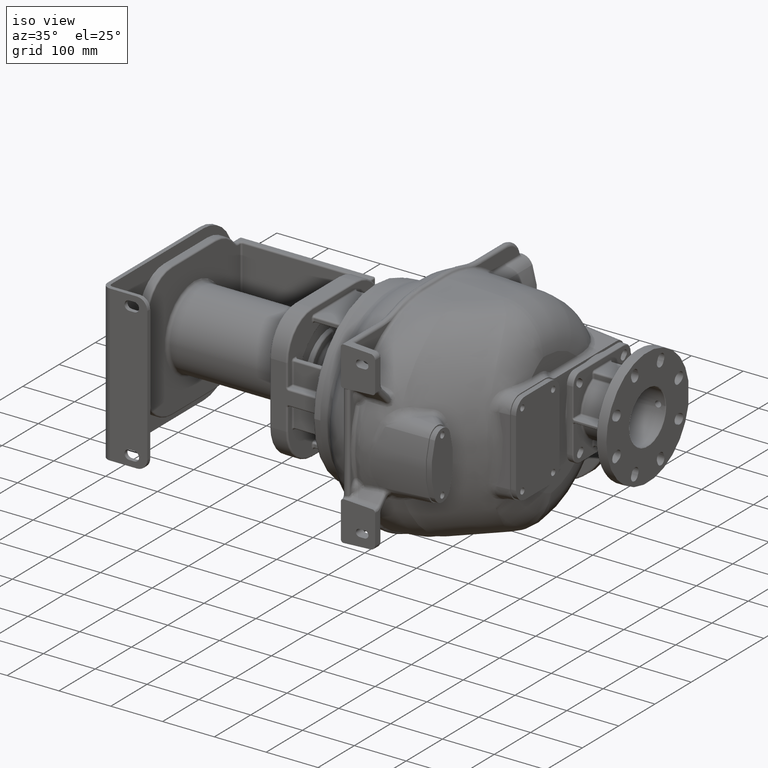
[diagram: clean part render]
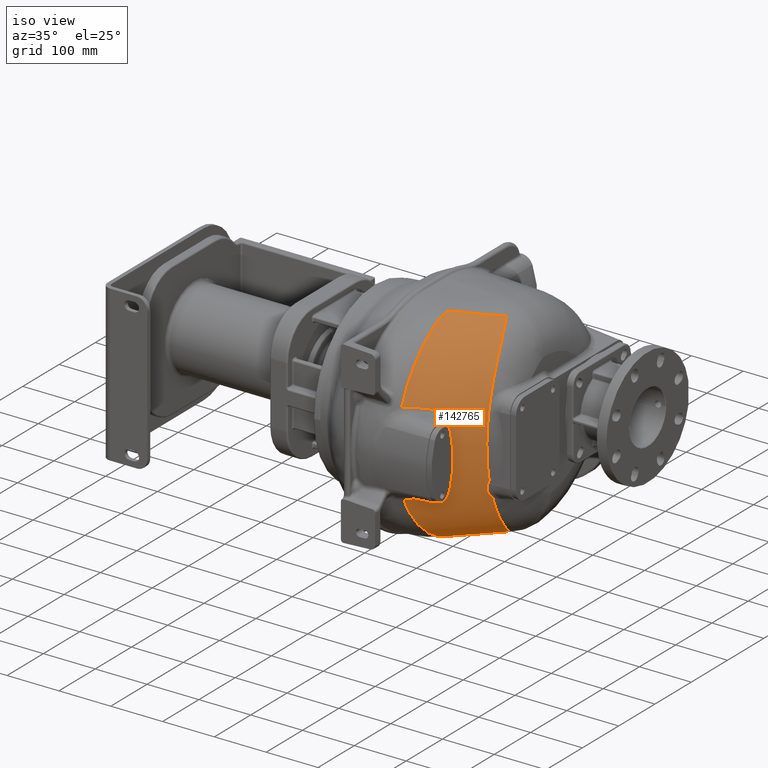
[diagram: same view with one face highlighted and labeled with its STEP entity id]
A machine part, iso view. The second image highlights one B-rep face of the part: STEP entity #142765.
In plain terms, the highlighted face is a SurfaceOfExtrusion surface.
Its self-contained STEP definition (entity closure, byte-faithful):
#49000=CARTESIAN_POINT('',(7.394829784975E1,5.269792538880E1,6.230793040691E1));
#49285=CARTESIAN_POINT('',(1.396796360938E2,2.655411247039E2,
-2.164049095724E2));
#49286=CARTESIAN_POINT('',(1.398691352725E2,2.651497351180E2,
-2.162524914404E2));
#49287=CARTESIAN_POINT('',(1.402458322820E2,2.643588112964E2,
-2.159411182603E2));
#49288=CARTESIAN_POINT('',(1.408008436913E2,2.631503518049E2,
-2.154556570832E2));
#49289=CARTESIAN_POINT('',(1.413600000921E2,2.619177548487E2,
-2.149470240340E2));
#49290=CARTESIAN_POINT('',(1.419315399732E2,2.606588110099E2,
-2.144111059235E2));
#49291=CARTESIAN_POINT('',(1.425189851292E2,2.593725592858E2,
-2.138452006466E2));
#49292=CARTESIAN_POINT('',(1.431174980600E2,2.580576704983E2,
-2.132489306291E2));
#49293=CARTESIAN_POINT('',(1.437263629583E2,2.567159875969E2,
-2.126217142355E2));
#49294=CARTESIAN_POINT('',(1.443445506905E2,2.553481856691E2,
-2.119627410096E2));
#49295=CARTESIAN_POINT('',(1.449714509678E2,2.539524711793E2,
-2.112702246288E2));
#49296=CARTESIAN_POINT('',(1.456061274984E2,2.525287115517E2,
-2.105429590467E2));
#49297=CARTESIAN_POINT('',(1.462444985424E2,2.510819902013E2,
-2.097828306881E2));
#49298=CARTESIAN_POINT('',(1.468883287493E2,2.496308350091E2,
-2.089949021433E2));
#49299=CARTESIAN_POINT('',(1.475300143344E2,2.481799127211E2,
-2.081831499805E2));
#49300=CARTESIAN_POINT('',(1.481698211727E2,2.467273529312E2,
-2.073463581462E2));
#49301=CARTESIAN_POINT('',(1.488045701043E2,2.452700859247E2,
-2.064841520932E2));
#49302=CARTESIAN_POINT('',(1.494329712234E2,2.438066122965E2,
-2.055960920542E2));
#49303=CARTESIAN_POINT('',(1.500542257594E2,2.423369808796E2,
-2.046822299083E2));
#49304=CARTESIAN_POINT('',(1.506646519821E2,2.408584075068E2,
-2.037427414838E2));
#49305=CARTESIAN_POINT('',(1.512663848347E2,2.393718815349E2,
-2.027769026119E2));
#49306=CARTESIAN_POINT('',(1.518569215245E2,2.378758211982E2,
-2.017850125555E2));
#49307=CARTESIAN_POINT('',(1.524426949354E2,2.363728564108E2,
-2.007649317776E2));
#49308=CARTESIAN_POINT('',(1.530264230759E2,2.348652130216E2,
-1.997157240726E2));
#49309=CARTESIAN_POINT('',(1.536039111692E2,2.333507486137E2,
-1.986378582468E2));
#49310=CARTESIAN_POINT('',(1.541749062279E2,2.318295386172E2,
-1.975310096116E2));
#49311=CARTESIAN_POINT('',(1.547382102909E2,2.303005502118E2,
-1.963948021109E2));
#49312=CARTESIAN_POINT('',(1.552930013943E2,2.287635037687E2,
-1.952291046386E2));
#49313=CARTESIAN_POINT('',(1.558382859766E2,2.272181804435E2,
-1.940339722277E2));
#49314=CARTESIAN_POINT('',(1.563737634703E2,2.256646060814E2,
-1.928092721390E2));
#49315=CARTESIAN_POINT('',(1.568988412766E2,2.241013670592E2,
-1.915541773114E2));
#49316=CARTESIAN_POINT('',(1.574120896790E2,2.225289793955E2,
-1.902696269549E2));
#49317=CARTESIAN_POINT('',(1.579246641240E2,2.209633260219E2,
-1.889581034971E2));
#49318=CARTESIAN_POINT('',(1.584363675274E2,2.194088712162E2,
-1.876217742642E2));
#49319=CARTESIAN_POINT('',(1.589441839937E2,2.178605951555E2,
-1.862588012521E2));
#49320=CARTESIAN_POINT('',(1.594471809583E2,2.163186597075E2,
-1.848693506688E2));
#49321=CARTESIAN_POINT('',(1.599436869015E2,2.147817609447E2,
-1.834532341507E2));
#49322=CARTESIAN_POINT('',(1.604327179938E2,2.132491629934E2,
-1.820102450731E2));
#49323=CARTESIAN_POINT('',(1.609131725080E2,2.117197179339E2,
-1.805400244756E2));
#49324=CARTESIAN_POINT('',(1.613844214338E2,2.101933212214E2,
-1.790426839156E2));
#49325=CARTESIAN_POINT('',(1.618457281313E2,2.086693105594E2,
-1.775180805040E2));
#49326=CARTESIAN_POINT('',(1.622966299736E2,2.071459612401E2,
-1.759650268801E2));
#49327=CARTESIAN_POINT('',(1.627362542859E2,2.056242984037E2,
-1.743848663969E2));
#49328=CARTESIAN_POINT('',(1.631685375230E2,2.041090324113E2,
-1.727781392648E2));
#49329=CARTESIAN_POINT('',(1.635978838403E2,2.026077969200E2,
-1.711468273033E2));
#49330=CARTESIAN_POINT('',(1.640206781182E2,2.011174964443E2,
-1.694909250826E2));
#49331=CARTESIAN_POINT('',(1.644367835725E2,1.996374198572E2,
-1.678095245444E2));
#49332=CARTESIAN_POINT('',(1.648451927964E2,1.981664901547E2,
-1.661021854471E2));
#49333=CARTESIAN_POINT('',(1.652451350363E2,1.967047158900E2,
-1.643693238488E2));
#49334=CARTESIAN_POINT('',(1.656359519418E2,1.952511073662E2,
-1.626104075421E2));
#49335=CARTESIAN_POINT('',(1.660173709348E2,1.938054742240E2,
-1.608253216444E2));
#49336=CARTESIAN_POINT('',(1.663888635442E2,1.923674219429E2,
-1.590140619691E2));
#49337=CARTESIAN_POINT('',(1.667502973291E2,1.909364782363E2,
-1.571761923063E2));
#49338=CARTESIAN_POINT('',(1.671015857484E2,1.895125842366E2,
-1.553116403372E2));
#49339=CARTESIAN_POINT('',(1.674420333896E2,1.880979932693E2,
-1.534235906890E2));
#49340=CARTESIAN_POINT('',(1.677712576143E2,1.866876056240E2,
-1.515071114698E2));
#49341=CARTESIAN_POINT('',(1.680967293993E2,1.852739888138E2,
-1.495451559479E2));
#49342=CARTESIAN_POINT('',(1.684224308540E2,1.838501410581E2,
-1.475227087294E2));
#49343=CARTESIAN_POINT('',(1.687501275349E2,1.824105123552E2,
-1.454274902699E2));
#49344=CARTESIAN_POINT('',(1.690790072906E2,1.809595534118E2,
-1.432614577273E2));
#49345=CARTESIAN_POINT('',(1.694071587159E2,1.795017965993E2,
-1.410283103363E2));
#49346=CARTESIAN_POINT('',(1.697343804783E2,1.780444405315E2,
-1.387336223683E2));
#49347=CARTESIAN_POINT('',(1.700619850885E2,1.765772033052E2,
-1.363580799674E2));
#49348=CARTESIAN_POINT('',(1.703892574553E2,1.750725870134E2,
-1.338597272547E2));
#49349=CARTESIAN_POINT('',(1.707212841735E2,1.734991195998E2,
-1.311774807304E2));
#49350=CARTESIAN_POINT('',(1.710578194300E2,1.718678128878E2,
-1.283136297441E2));
#49351=CARTESIAN_POINT('',(1.714096719131E2,1.701310269326E2,
-1.251613423656E2));
#49352=CARTESIAN_POINT('',(1.717602345736E2,1.683787530381E2,
-1.218580499784E2));
#49353=CARTESIAN_POINT('',(1.721006822004E2,1.666728146140E2,
-1.185097346936E2));
#49354=CARTESIAN_POINT('',(1.724359087722E2,1.649603750353E2,
-1.150123908094E2));
#49355=CARTESIAN_POINT('',(1.727503628111E2,1.633162532062E2,
-1.115152258100E2));
#49356=CARTESIAN_POINT('',(1.729478621744E2,1.622710949257E2,
-1.091959780507E2));
#49357=CARTESIAN_POINT('',(1.730438431355E2,1.617612326784E2,
-1.080398941876E2));
#49359=CARTESIAN_POINT('',(1.051879980743E2,2.555571718179E2,
-2.213456481725E2));
#49360=CARTESIAN_POINT('',(1.052436944904E2,2.556240999391E2,
-2.213472542953E2));
#49361=CARTESIAN_POINT('',(1.053584969889E2,2.557587085346E2,
-2.213500812817E2));
#49362=CARTESIAN_POINT('',(1.055399842739E2,2.559621118685E2,
-2.213532132157E2));
#49363=CARTESIAN_POINT('',(1.057337729987E2,2.561691726503E2,
-2.213551073358E2));
#49364=CARTESIAN_POINT('',(1.059418293946E2,2.563812026940E2,
-2.213556745324E2));
#49365=CARTESIAN_POINT('',(1.061666946160E2,2.565994430039E2,
-2.213547290378E2));
#49366=CARTESIAN_POINT('',(1.064110567940E2,2.568247225410E2,
-2.213520046682E2));
#49367=CARTESIAN_POINT('',(1.066777473848E2,2.570577853596E2,
-2.213471998603E2));
#49368=CARTESIAN_POINT('',(1.069692939223E2,2.572989272600E2,
-2.213399886694E2));
#49369=CARTESIAN_POINT('',(1.072899254195E2,2.575496182261E2,
-2.213299640550E2));
#49370=CARTESIAN_POINT('',(1.076449762686E2,2.578120129132E2,
-2.213166505162E2));
#49371=CARTESIAN_POINT('',(1.080402232194E2,2.580873825108E2,
-2.212993697547E2));
#49372=CARTESIAN_POINT('',(1.084803497796E2,2.583755841289E2,
-2.212773783649E2));
#49373=CARTESIAN_POINT('',(1.089695024706E2,2.586763540987E2,
-2.212499688269E2));
#49374=CARTESIAN_POINT('',(1.095097358194E2,2.589878270667E2,
-2.212164735043E2));
#49375=CARTESIAN_POINT('',(1.100911235272E2,2.593018251588E2,
-2.211770287942E2));
#49376=CARTESIAN_POINT('',(1.107037658011E2,2.596121639799E2,
-2.211320520627E2));
#49377=CARTESIAN_POINT('',(1.113212459044E2,2.599074135239E2,
-2.210836612098E2));
#49378=CARTESIAN_POINT('',(1.119183834176E2,2.601809009580E2,
-2.210346002867E2));
#49379=CARTESIAN_POINT('',(1.125111472726E2,2.604395435684E2,-2.209834875E2));
#49380=CARTESIAN_POINT('',(1.131174640437E2,2.606825616616E2,
-2.209273627633E2));
#49381=CARTESIAN_POINT('',(1.137431266255E2,2.609127236350E2,
-2.208655981817E2));
#49382=CARTESIAN_POINT('',(1.143945557781E2,2.611325998634E2,
-2.207974043754E2));
#49383=CARTESIAN_POINT('',(1.150871334101E2,2.613484853052E2,
-2.207210987775E2));
#49384=CARTESIAN_POINT('',(1.158389843611E2,2.615631595551E2,
-2.206338642298E2));
#49385=CARTESIAN_POINT('',(1.166688726975E2,2.617768805077E2,
-2.205321541220E2));
#49386=CARTESIAN_POINT('',(1.175916355470E2,2.619855357761E2,
-2.204120242309E2));
#49387=CARTESIAN_POINT('',(1.185992241017E2,2.621858738359E2,
-2.202732334810E2));
#49388=CARTESIAN_POINT('',(1.196928585650E2,2.623895312454E2,
-2.201165380038E2));
#49389=CARTESIAN_POINT('',(1.208416340353E2,2.625663989778E2,
-2.199408343115E2));
#49390=CARTESIAN_POINT('',(1.219467739585E2,2.627356331204E2,
-2.197669819514E2));
#49391=CARTESIAN_POINT('',(1.229137115070E2,2.628819907739E2,
-2.196109121655E2));
#49392=CARTESIAN_POINT('',(1.237615854436E2,2.629982216808E2,
-2.194689529629E2));
#49393=CARTESIAN_POINT('',(1.245434176165E2,2.631117292173E2,
-2.193369665488E2));
#49394=CARTESIAN_POINT('',(1.253076659045E2,2.632284370996E2,
-2.192069999638E2));
#49395=CARTESIAN_POINT('',(1.260842257678E2,2.633520273815E2,
-2.190738278994E2));
#49396=CARTESIAN_POINT('',(1.268579582439E2,2.634790439528E2,
-2.189398366955E2));
#49397=CARTESIAN_POINT('',(1.276289258937E2,2.636022598377E2,
-2.188035771087E2));
#49398=CARTESIAN_POINT('',(1.284049033050E2,2.637211128542E2,
-2.186632321547E2));
#49399=CARTESIAN_POINT('',(1.291860563994E2,2.638411128602E2,
-2.185198573393E2));
#49400=CARTESIAN_POINT('',(1.299704789053E2,2.639656768890E2,
-2.183745951198E2));
#49401=CARTESIAN_POINT('',(1.307534166007E2,2.640895609276E2,
-2.182273379962E2));
#49402=CARTESIAN_POINT('',(1.315272940710E2,2.642108156668E2,
-2.180793817038E2));
#49403=CARTESIAN_POINT('',(1.323003432973E2,2.643267947530E2,
-2.179282756742E2));
#49404=CARTESIAN_POINT('',(1.330812538940E2,2.644440219443E2,
-2.177734483226E2));
#49405=CARTESIAN_POINT('',(1.338638534827E2,2.645649398128E2,
-2.176168810032E2));
#49406=CARTESIAN_POINT('',(1.346463148904E2,2.646881231965E2,
-2.174587187837E2));
#49407=CARTESIAN_POINT('',(1.354619879190E2,2.648189090722E2,
-2.172921421626E2));
#49408=CARTESIAN_POINT('',(1.363402210150E2,2.649625208972E2,
-2.171108907976E2));
#49409=CARTESIAN_POINT('',(1.373112511497E2,2.651251355218E2,
-2.169083479700E2));
#49410=CARTESIAN_POINT('',(1.384030499707E2,2.653109623979E2,
-2.166775418791E2));
#49411=CARTESIAN_POINT('',(1.392378658193E2,2.654603315317E2,
-2.164996257814E2));
#49412=CARTESIAN_POINT('',(1.396796360938E2,2.655411247039E2,
-2.164049095724E2));
#49414=CARTESIAN_POINT('',(7.383885427940E1,5.935095692017E1,
-1.016630588015E2));
#49415=CARTESIAN_POINT('',(7.383585492985E1,5.957632707505E1,
-1.021373851162E2));
#49416=CARTESIAN_POINT('',(7.382992206273E1,6.003237708311E1,
-1.030877012466E2));
#49417=CARTESIAN_POINT('',(7.382121192224E1,6.073536961253E1,
-1.045237164510E2));
#49418=CARTESIAN_POINT('',(7.381276095887E1,6.144857176648E1,
-1.059521492226E2));
#49419=CARTESIAN_POINT('',(7.380463270930E1,6.216135974133E1,
-1.073527396066E2));
#49420=CARTESIAN_POINT('',(7.379652774110E1,6.288171385352E1,
-1.087428723312E2));
#49421=CARTESIAN_POINT('',(7.378789940458E1,6.365968901125E1,
-1.102170921755E2));
#49422=CARTESIAN_POINT('',(7.377838919170E1,6.454388541430E1,
-1.118595489638E2));
#49423=CARTESIAN_POINT('',(7.376680005093E1,6.557707697613E1,
-1.137374965946E2));
#49424=CARTESIAN_POINT('',(7.375272925761E1,6.676669583790E1,
-1.158471734230E2));
#49425=CARTESIAN_POINT('',(7.373525800338E1,6.812525403161E1,
-1.181931616818E2));
#49426=CARTESIAN_POINT('',(7.371054959931E1,6.971181330794E1,
-1.208558636563E2));
#49427=CARTESIAN_POINT('',(7.368598590566E1,7.152651222487E1,
-1.237905098900E2));
#49428=CARTESIAN_POINT('',(7.366039921511E1,7.350107137387E1,
-1.268654126339E2));
#49429=CARTESIAN_POINT('',(7.363315449737E1,7.556674324825E1,
-1.299632524285E2));
#49430=CARTESIAN_POINT('',(7.360231060242E1,7.761068276752E1,
-1.329215354217E2));
#49431=CARTESIAN_POINT('',(7.356585307144E1,7.952577703343E1,
-1.356100148608E2));
#49432=CARTESIAN_POINT('',(7.351943945420E1,8.137208577892E1,
-1.381360326141E2));
#49433=CARTESIAN_POINT('',(7.347314330112E1,8.319988563546E1,
-1.405615964763E2));
#49434=CARTESIAN_POINT('',(7.342830837924E1,8.502544226184E1,
-1.429121038386E2));
#49435=CARTESIAN_POINT('',(7.338567865142E1,8.684463113250E1,
-1.451860712355E2));
#49436=CARTESIAN_POINT('',(7.334491798320E1,8.864931556190E1,
-1.473790235536E2));
#49437=CARTESIAN_POINT('',(7.330893228064E1,9.043919952739E1,
-1.494921746814E2));
#49438=CARTESIAN_POINT('',(7.327480584052E1,9.221473134974E1,
-1.515340223768E2));
#49439=CARTESIAN_POINT('',(7.323985212529E1,9.399049157939E1,
-1.535272170924E2));
#49440=CARTESIAN_POINT('',(7.319711437395E1,9.577363535990E1,
-1.554879961814E2));
#49441=CARTESIAN_POINT('',(7.314601365947E1,9.757064391358E1,
-1.574238693124E2));
#49442=CARTESIAN_POINT('',(7.308746877231E1,9.937991961977E1,
-1.593319939330E2));
#49443=CARTESIAN_POINT('',(7.302124179754E1,1.011974729863E2,
-1.612087341524E2));
#49444=CARTESIAN_POINT('',(7.294725568792E1,1.030261713680E2,
-1.630572612146E2));
#49445=CARTESIAN_POINT('',(7.286615388907E1,1.048660049237E2,
-1.648770904191E2));
#49446=CARTESIAN_POINT('',(7.277894542113E1,1.067169802184E2,
-1.666675857497E2));
#49447=CARTESIAN_POINT('',(7.268643854876E1,1.085808609376E2,
-1.684299717733E2));
#49448=CARTESIAN_POINT('',(7.259039584742E1,1.104578379597E2,
-1.701632538114E2));
#49449=CARTESIAN_POINT('',(7.249299978518E1,1.123510941893E2,
-1.718688436693E2));
#49450=CARTESIAN_POINT('',(7.239641775337E1,1.142636465611E2,
-1.735479308494E2));
#49451=CARTESIAN_POINT('',(7.230626431185E1,1.161976796927E2,
-1.751983984596E2));
#49452=CARTESIAN_POINT('',(7.220612290316E1,1.181366143458E2,
-1.768205921351E2));
#49453=CARTESIAN_POINT('',(7.209906158231E1,1.200786810418E2,
-1.784107464516E2));
#49454=CARTESIAN_POINT('',(7.198208590535E1,1.220214123069E2,
-1.799696663066E2));
#49455=CARTESIAN_POINT('',(7.185901895107E1,1.239697467879E2,
-1.814985077759E2));
#49456=CARTESIAN_POINT('',(7.172942462641E1,1.259227950960E2,
-1.829972829891E2));
#49457=CARTESIAN_POINT('',(7.159598416734E1,1.278824297248E2,
-1.844658492604E2));
#49458=CARTESIAN_POINT('',(7.146027055344E1,1.298506471175E2,
-1.859049942739E2));
#49459=CARTESIAN_POINT('',(7.132648584072E1,1.318306478424E2,
-1.873145927191E2));
#49460=CARTESIAN_POINT('',(7.119554944495E1,1.338234632050E2,
-1.886953603081E2));
#49461=CARTESIAN_POINT('',(7.107664106936E1,1.358383518929E2,
-1.900480653479E2));
#49462=CARTESIAN_POINT('',(7.097094383738E1,1.378794964570E2,
-1.913752758271E2));
#49463=CARTESIAN_POINT('',(7.085933753745E1,1.399056700632E2,
-1.926641947914E2));
#49464=CARTESIAN_POINT('',(7.073750534203E1,1.419424944802E2,
-1.939330256064E2));
#49465=CARTESIAN_POINT('',(7.060870969924E1,1.439563051335E2,
-1.951595384729E2));
#49466=CARTESIAN_POINT('',(7.048547889196E1,1.457749113288E2,
-1.962432286411E2));
#49467=CARTESIAN_POINT('',(7.037230965057E1,1.473823782386E2,
-1.971821246519E2));
#49468=CARTESIAN_POINT('',(7.026995970804E1,1.487856664851E2,
-1.979873880342E2));
#49469=CARTESIAN_POINT('',(7.017834507504E1,1.500048032729E2,
-1.986762578946E2));
#49470=CARTESIAN_POINT('',(7.009541099343E1,1.510904358515E2,
-1.992810156088E2));
#49471=CARTESIAN_POINT('',(7.001979973107E1,1.521047927798E2,
-1.998372387668E2));
#49472=CARTESIAN_POINT('',(6.994459670664E1,1.531155398651E2,
-2.003839099216E2));
#49473=CARTESIAN_POINT('',(6.986763924141E1,1.541487295235E2,
-2.009349374435E2));
#49474=CARTESIAN_POINT('',(6.978868155764E1,1.551845973251E2,
-2.014803856823E2));
#49475=CARTESIAN_POINT('',(6.970993466931E1,1.562192288068E2,
-2.020172955502E2));
#49476=CARTESIAN_POINT('',(6.963385806461E1,1.572397492064E2,
-2.025386337350E2));
#49477=CARTESIAN_POINT('',(6.955579127584E1,1.582986588835E2,
-2.030714839098E2));
#49478=CARTESIAN_POINT('',(6.946668061079E1,1.594513811382E2,
-2.036445970402E2));
#49479=CARTESIAN_POINT('',(6.935963151710E1,1.607733419117E2,
-2.042925606239E2));
#49480=CARTESIAN_POINT('',(6.923327350729E1,1.622444453293E2,
-2.050018877502E2));
#49481=CARTESIAN_POINT('',(6.910419938551E1,1.637388553094E2,
-2.057064773946E2));
#49482=CARTESIAN_POINT('',(6.897926604467E1,1.651436795907E2,
-2.063557356019E2));
#49483=CARTESIAN_POINT('',(6.886343714737E1,1.664306962810E2,
-2.069388737379E2));
#49484=CARTESIAN_POINT('',(6.876219705821E1,1.675756421017E2,
-2.074471126576E2));
#49485=CARTESIAN_POINT('',(6.867390507777E1,1.685644895650E2,
-2.078791786892E2));
#49486=CARTESIAN_POINT('',(6.859561489208E1,1.694535284591E2,
-2.082615972038E2));
#49487=CARTESIAN_POINT('',(6.852704209455E1,1.702886688216E2,
-2.086141129624E2));
#49488=CARTESIAN_POINT('',(6.846091921616E1,1.711257923298E2,
-2.089618910612E2));
#49489=CARTESIAN_POINT('',(6.839537224934E1,1.719811998789E2,
-2.093117336335E2));
#49490=CARTESIAN_POINT('',(6.833150076637E1,1.728379986005E2,
-2.096567088760E2));
#49491=CARTESIAN_POINT('',(6.827195952221E1,1.736927440235E2,
-2.099946272106E2));
#49492=CARTESIAN_POINT('',(6.821811603512E1,1.745364336756E2,
-2.103219264155E2));
#49493=CARTESIAN_POINT('',(6.816711887257E1,1.754119376800E2,
-2.106552858759E2));
#49494=CARTESIAN_POINT('',(6.811488154674E1,1.763666112246E2,
-2.110124092925E2));
#49495=CARTESIAN_POINT('',(6.805955194334E1,1.774502295118E2,
-2.114098734260E2));
#49496=CARTESIAN_POINT('',(6.800075077988E1,1.786958095712E2,
-2.118566661023E2));
#49497=CARTESIAN_POINT('',(6.794550191393E1,1.801474785810E2,
-2.123616401840E2));
#49498=CARTESIAN_POINT('',(6.789891434267E1,1.817803434194E2,
-2.129102808562E2));
#49499=CARTESIAN_POINT('',(6.787297621537E1,1.835143399629E2,
-2.134689813256E2));
#49500=CARTESIAN_POINT('',(6.787641647193E1,1.851205277500E2,
-2.139634359033E2));
#49501=CARTESIAN_POINT('',(6.790156474869E1,1.865078182454E2,
-2.143736094072E2));
#49502=CARTESIAN_POINT('',(6.794560179867E1,1.877895919295E2,
-2.147383708695E2));
#49503=CARTESIAN_POINT('',(6.800771742217E1,1.889115272707E2,
-2.150446176983E2));
#49504=CARTESIAN_POINT('',(6.807659900297E1,1.899282692922E2,
-2.153140108123E2));
#49505=CARTESIAN_POINT('',(6.816907676833E1,1.909550850837E2,
-2.155754510553E2));
#49506=CARTESIAN_POINT('',(6.827898419808E1,1.921147683771E2,
-2.158643627986E2));
#49507=CARTESIAN_POINT('',(6.842782289940E1,1.935003225356E2,
-2.161977318534E2));
#49508=CARTESIAN_POINT('',(6.860478436438E1,1.949357997167E2,
-2.165286645702E2));
#49509=CARTESIAN_POINT('',(6.877265672465E1,1.961275461460E2,
-2.167919608302E2));
#49510=CARTESIAN_POINT('',(6.893952113492E1,1.971878513826E2,
-2.170176457854E2));
#49511=CARTESIAN_POINT('',(6.910586094868E1,1.981375124048E2,
-2.172122169776E2));
#49512=CARTESIAN_POINT('',(6.926853759680E1,1.989813310321E2,
-2.173789247379E2));
#49513=CARTESIAN_POINT('',(6.942293261109E1,1.997137311281E2,
-2.175185786977E2));
#49514=CARTESIAN_POINT('',(6.957155022E1,2.003626567800E2,-2.176381275719E2));
#49515=CARTESIAN_POINT('',(6.971364299876E1,2.009354172118E2,
-2.177400369729E2));
#49516=CARTESIAN_POINT('',(6.985082655533E1,2.014506964755E2,
-2.178287543058E2));
#49517=CARTESIAN_POINT('',(6.998735850311E1,2.019281352297E2,
-2.179081324553E2));
#49518=CARTESIAN_POINT('',(7.011748757094E1,2.023551962314E2,
-2.179767965673E2));
#49519=CARTESIAN_POINT('',(7.024449522401E1,2.027463222651E2,
-2.180375078956E2));
#49520=CARTESIAN_POINT('',(7.037100591809E1,2.031135852336E2,
-2.180925475784E2));
#49521=CARTESIAN_POINT('',(7.049977871952E1,2.034695664388E2,
-2.181442279050E2));
#49522=CARTESIAN_POINT('',(7.063699929980E1,2.038258311153E2,
-2.181938089165E2));
#49523=CARTESIAN_POINT('',(7.078422969468E1,2.041918610263E2,
-2.182430982740E2));
#49524=CARTESIAN_POINT('',(7.094745933787E1,2.045793390817E2,
-2.182933672406E2));
#49525=CARTESIAN_POINT('',(7.112581499169E1,2.049840778598E2,
-2.183438583454E2));
#49526=CARTESIAN_POINT('',(7.131842280747E1,2.054037998599E2,
-2.183942569556E2));
#49527=CARTESIAN_POINT('',(7.153149479462E1,2.058506173592E2,
-2.184458600243E2));
#49528=CARTESIAN_POINT('',(7.176735185250E1,2.063273492791E2,
-2.184987526908E2));
#49529=CARTESIAN_POINT('',(7.203116277843E1,2.068424530868E2,
-2.185536270199E2));
#49530=CARTESIAN_POINT('',(7.233305508209E1,2.074131299115E2,
-2.186119795784E2));
#49531=CARTESIAN_POINT('',(7.269147582279E1,2.080698848913E2,
-2.186763277487E2));
#49532=CARTESIAN_POINT('',(7.309645027057E1,2.087906345046E2,
-2.187439485122E2));
#49533=CARTESIAN_POINT('',(7.353756596062E1,2.095546083131E2,
-2.188125763252E2));
#49534=CARTESIAN_POINT('',(7.403830876932E1,2.103981737389E2,
-2.188848975405E2));
#49535=CARTESIAN_POINT('',(7.462529430911E1,2.113662877580E2,
-2.189646226659E2));
#49536=CARTESIAN_POINT('',(7.528526314327E1,2.124382608013E2,
-2.190499951781E2));
#49537=CARTESIAN_POINT('',(7.602613690496E1,2.136281289604E2,
-2.191420854313E2));
#49538=CARTESIAN_POINT('',(7.686155548672E1,2.149632816033E2,
-2.192434058035E2));
#49539=CARTESIAN_POINT('',(7.775874528253E1,2.164056699172E2,
-2.193525174462E2));
#49540=CARTESIAN_POINT('',(7.871474426721E1,2.179670247772E2,
-2.194719693463E2));
#49541=CARTESIAN_POINT('',(7.980168415716E1,2.197672361077E2,
-2.196103828914E2));
#49542=CARTESIAN_POINT('',(8.102442245295E1,2.218115120035E2,
-2.197666519947E2));
#49543=CARTESIAN_POINT('',(8.237762042754E1,2.240748680836E2,
-2.199356715859E2));
#49544=CARTESIAN_POINT('',(8.368017058061E1,2.262211017036E2,
-2.200884590107E2));
#49545=CARTESIAN_POINT('',(8.484708559104E1,2.281043788719E2,
-2.202154170688E2));
#49546=CARTESIAN_POINT('',(8.590871919693E1,2.297839198354E2,
-2.203229408955E2));
#49547=CARTESIAN_POINT('',(8.691378797343E1,2.313427628875E2,
-2.204177422273E2));
#49548=CARTESIAN_POINT('',(8.788061109365E1,2.328128650801E2,
-2.205026224183E2));
#49549=CARTESIAN_POINT('',(8.882745920345E1,2.342249135241E2,
-2.205800106442E2));
#49550=CARTESIAN_POINT('',(8.976869436418E1,2.356017038307E2,
-2.206515432190E2));
#49551=CARTESIAN_POINT('',(9.071661258622E1,2.369623877413E2,
-2.207185156002E2));
#49552=CARTESIAN_POINT('',(9.167790887707E1,2.383163296076E2,
-2.207814924219E2));
#49553=CARTESIAN_POINT('',(9.265922075822E1,2.396733770987E2,
-2.208410971195E2));
#49554=CARTESIAN_POINT('',(9.366260416843E1,2.410357574685E2,
-2.208974494225E2));
#49555=CARTESIAN_POINT('',(9.469368291336E1,2.424110112026E2,
-2.209509379380E2));
#49556=CARTESIAN_POINT('',(9.577912035145E1,2.438338960803E2,
-2.210028747625E2));
#49557=CARTESIAN_POINT('',(9.694878786733E1,2.453385605060E2,
-2.210539539174E2));
#49558=CARTESIAN_POINT('',(9.827011302878E1,2.470225055858E2,
-2.211087109347E2));
#49559=CARTESIAN_POINT('',(9.978875760051E1,2.489376554728E2,
-2.211679275903E2));
#49560=CARTESIAN_POINT('',(1.015074484648E2,2.510783616269E2,
-2.212301876086E2));
#49561=CARTESIAN_POINT('',(1.033540598563E2,2.533451205845E2,
-2.212913642929E2));
#49562=CARTESIAN_POINT('',(1.045731970654E2,2.548192869384E2,
-2.213280437824E2));
#49563=CARTESIAN_POINT('',(1.051879980743E2,2.555571718179E2,
-2.213456481725E2));
#49565=CARTESIAN_POINT('',(7.383885427940E1,5.935095692017E1,
-1.016630588015E2));
#49566=CARTESIAN_POINT('',(7.403718741297E1,5.955241656581E1,
-1.016695582490E2));
#49567=CARTESIAN_POINT('',(7.444589938780E1,5.996454803409E1,
-1.016766418613E2));
#49568=CARTESIAN_POINT('',(7.509904026186E1,6.061291773176E1,
-1.016667411725E2));
#49569=CARTESIAN_POINT('',(7.578317560630E1,6.128167741962E1,
-1.016348022243E2));
#49570=CARTESIAN_POINT('',(7.650390053181E1,6.197526145317E1,
-1.015783941967E2));
#49571=CARTESIAN_POINT('',(7.725744149841E1,6.268941190368E1,
-1.014964491790E2));
#49572=CARTESIAN_POINT('',(7.805587788604E1,6.343490678201E1,
-1.013861719052E2));
#49573=CARTESIAN_POINT('',(7.892951564856E1,6.423829833449E1,
-1.012395960169E2));
#49574=CARTESIAN_POINT('',(7.988812171893E1,6.510671520657E1,
-1.010509772199E2));
#49575=CARTESIAN_POINT('',(8.089779707731E1,6.600793275984E1,
-1.008234856411E2));
#49576=CARTESIAN_POINT('',(8.193419310018E1,6.692150733975E1,
-1.005650260900E2));
#49577=CARTESIAN_POINT('',(8.261631680211E1,6.751632074101E1,
-1.003805129003E2));
#49578=CARTESIAN_POINT('',(8.295732024050E1,6.781258839596E1,-1.0028587E2));
#49580=CARTESIAN_POINT('',(8.295732024050E1,6.781258839596E1,-1.0028587E2));
#49581=CARTESIAN_POINT('',(8.451109908025E1,6.916277036771E1,
-9.985491307648E1));
#49582=CARTESIAN_POINT('',(8.746742163985E1,7.173635268376E1,
-9.903702486108E1));
#49583=CARTESIAN_POINT('',(9.144232743542E1,7.522067081227E1,
-9.797175681612E1));
#49584=CARTESIAN_POINT('',(9.496882241473E1,7.834065353399E1,
-9.707687720856E1));
#49585=CARTESIAN_POINT('',(9.804733860066E1,8.109278532460E1,
-9.635021950739E1));
#49586=CARTESIAN_POINT('',(1.007546851377E2,8.353949725083E1,
-9.576464190506E1));
#49587=CARTESIAN_POINT('',(1.031669744201E2,8.574338719464E1,
-9.529297735953E1));
#49588=CARTESIAN_POINT('',(1.046535141694E2,8.711655085136E1,
-9.503483065884E1));
#49589=CARTESIAN_POINT('',(1.053603343979E2,8.777296339332E1,
-9.491980783797E1));
#49591=CARTESIAN_POINT('',(1.053603343979E2,8.777296339332E1,
-9.491980783797E1));
#49592=CARTESIAN_POINT('',(1.055671526907E2,8.796502904875E1,
-9.488614829972E1));
#49593=CARTESIAN_POINT('',(1.059790705648E2,8.834451182844E1,
-9.481208254873E1));
#49594=CARTESIAN_POINT('',(1.065917130975E2,8.889991318026E1,
-9.468115885968E1));
#49595=CARTESIAN_POINT('',(1.071991842723E2,8.944173183876E1,
-9.453069211739E1));
#49596=CARTESIAN_POINT('',(1.078015114781E2,8.997018473044E1,
-9.436099613009E1));
#49597=CARTESIAN_POINT('',(1.083987243326E2,9.048551668931E1,
-9.417242672549E1));
#49598=CARTESIAN_POINT('',(1.089908882558E2,9.098794622914E1,
-9.396518603247E1));
#49599=CARTESIAN_POINT('',(1.095782830023E2,9.147791874673E1,
-9.373949272103E1));
#49600=CARTESIAN_POINT('',(1.101612353113E2,9.195586775662E1,
-9.349541721834E1));
#49601=CARTESIAN_POINT('',(1.107399972674E2,9.242213733874E1,
-9.323298209231E1));
#49602=CARTESIAN_POINT('',(1.113147072911E2,9.287700802100E1,
-9.295231420469E1));
#49603=CARTESIAN_POINT('',(1.118855270660E2,9.332070882263E1,
-9.265335264615E1));
#49604=CARTESIAN_POINT('',(1.124526036034E2,9.375348607825E1,
-9.233609740413E1));
#49605=CARTESIAN_POINT('',(1.130160815388E2,9.417556740025E1,
-9.200049638159E1));
#49606=CARTESIAN_POINT('',(1.135760770992E2,9.458710987163E1,
-9.164638195227E1));
#49607=CARTESIAN_POINT('',(1.141326804571E2,9.498829520357E1,
-9.127369131888E1));
#49608=CARTESIAN_POINT('',(1.146859533335E2,9.537922882526E1,
-9.088223116369E1));
#49609=CARTESIAN_POINT('',(1.152359414687E2,9.576000709963E1,
-9.047180637450E1));
#49610=CARTESIAN_POINT('',(1.157826803169E2,9.613073205577E1,
-9.004224237215E1));
#49611=CARTESIAN_POINT('',(1.163261545613E2,9.649141796149E1,
-8.959325460986E1));
#49612=CARTESIAN_POINT('',(1.168663579437E2,9.684211913550E1,
-8.912461313997E1));
#49613=CARTESIAN_POINT('',(1.174032372373E2,9.718283079442E1,
-8.863603657662E1));
#49614=CARTESIAN_POINT('',(1.179367084984E2,9.751351275193E1,
-8.812720798955E1));
#49615=CARTESIAN_POINT('',(1.184666878545E2,9.783414645741E1,
-8.759783984858E1));
#49616=CARTESIAN_POINT('',(1.189930228098E2,9.814463426333E1,
-8.704759248851E1));
#49617=CARTESIAN_POINT('',(1.195155560062E2,9.844489022254E1,
-8.647614085245E1));
#49618=CARTESIAN_POINT('',(1.200340887151E2,9.873479724034E1,
-8.588315808626E1));
#49619=CARTESIAN_POINT('',(1.205483702764E2,9.901419375804E1,
-8.526830724423E1));
#49620=CARTESIAN_POINT('',(1.210581341484E2,9.928292283791E1,
-8.463127471515E1));
#49621=CARTESIAN_POINT('',(1.215630568697E2,9.954078230196E1,
-8.397174686294E1));
#49622=CARTESIAN_POINT('',(1.220627670069E2,9.978755016860E1,
-8.328945386956E1));
#49623=CARTESIAN_POINT('',(1.225568438409E2,1.000229788216E2,
-8.258415918504E1));
#49624=CARTESIAN_POINT('',(1.230448258932E2,1.002468031436E2,
-8.185565930567E1));
#49625=CARTESIAN_POINT('',(1.235261634329E2,1.004587188722E2,
-8.110385794173E1));
#49626=CARTESIAN_POINT('',(1.240002764876E2,1.006584139231E2,
-8.032869655123E1));
#49627=CARTESIAN_POINT('',(1.244665455195E2,1.008455715840E2,
-7.953019196247E1));
#49628=CARTESIAN_POINT('',(1.249242872822E2,1.010198411029E2,
-7.870842919749E1));
#49629=CARTESIAN_POINT('',(1.253728293329E2,1.011809009918E2,
-7.786353160869E1));
#49630=CARTESIAN_POINT('',(1.258113627577E2,1.013283780664E2,
-7.699586340937E1));
#49631=CARTESIAN_POINT('',(1.262390555091E2,1.014619054210E2,
-7.610588082963E1));
#49632=CARTESIAN_POINT('',(1.266550810294E2,1.015811524922E2,
-7.519414421704E1));
#49633=CARTESIAN_POINT('',(1.270585193552E2,1.016857473548E2,
-7.426139491777E1));
#49634=CARTESIAN_POINT('',(1.274484934768E2,1.017753817118E2,
-7.330847472343E1));
#49635=CARTESIAN_POINT('',(1.278241835782E2,1.018497703588E2,
-7.233615248579E1));
#49636=CARTESIAN_POINT('',(1.280644301826E2,1.018889933780E2,
-7.167597171867E1));
#49637=CARTESIAN_POINT('',(1.281819696654E2,1.019059891427E2,
-7.134276424315E1));
#49639=CARTESIAN_POINT('',(1.281819696654E2,1.019059891427E2,
-7.134276424315E1));
#49640=CARTESIAN_POINT('',(1.284675049894E2,1.019472638539E2,
-7.053327093732E1));
#49641=CARTESIAN_POINT('',(1.290238303907E2,1.020263247886E2,
-6.891604173786E1));
#49642=CARTESIAN_POINT('',(1.298150822346E2,1.021351563426E2,
-6.649623386338E1));
#49643=CARTESIAN_POINT('',(1.305636385704E2,1.022343843844E2,
-6.408303157563E1));
#49644=CARTESIAN_POINT('',(1.312703159890E2,1.023244467213E2,
-6.167702695628E1));
#49645=CARTESIAN_POINT('',(1.319358800857E2,1.024057080657E2,
-5.927876338921E1));
#49646=CARTESIAN_POINT('',(1.325610759679E2,1.024785009086E2,
-5.688876687233E1));
#49647=CARTESIAN_POINT('',(1.331467214810E2,1.025431072318E2,
-5.450701000840E1));
#49648=CARTESIAN_POINT('',(1.336935841163E2,1.025997923436E2,
-5.213352625783E1));
#49649=CARTESIAN_POINT('',(1.342025072052E2,1.026488258110E2,
-4.976789099719E1));
#49650=CARTESIAN_POINT('',(1.346743634255E2,1.026904600431E2,
-4.740919418989E1));
#49651=CARTESIAN_POINT('',(1.351099261117E2,1.027249193305E2,
-4.505657410720E1));
#49652=CARTESIAN_POINT('',(1.355097809633E2,1.027524061585E2,
-4.270989594640E1));
#49653=CARTESIAN_POINT('',(1.358744905660E2,1.027731076305E2,
-4.036894130887E1));
#49654=CARTESIAN_POINT('',(1.362045123919E2,1.027871723005E2,
-3.803382120893E1));
#49655=CARTESIAN_POINT('',(1.365002370070E2,1.027947356701E2,
-3.570498791727E1));
#49656=CARTESIAN_POINT('',(1.367620575256E2,1.027959305669E2,
-3.338280650501E1));
#49657=CARTESIAN_POINT('',(1.369904484657E2,1.027908618755E2,
-3.106656193017E1));
#49658=CARTESIAN_POINT('',(1.371858140924E2,1.027796114214E2,
-2.875553033838E1));
#49659=CARTESIAN_POINT('',(1.373485222394E2,1.027622618107E2,
-2.644891047662E1));
#49660=CARTESIAN_POINT('',(1.374788953053E2,1.027388920419E2,
-2.414582236884E1));
#49661=CARTESIAN_POINT('',(1.375771782365E2,1.027095565558E2,
-2.184539687740E1));
#49662=CARTESIAN_POINT('',(1.376435221611E2,1.026742967726E2,
-1.954759359221E1));
#49663=CARTESIAN_POINT('',(1.376780613605E2,1.026331460464E2,
-1.725237690169E1));
#49664=CARTESIAN_POINT('',(1.376809004467E2,1.025861180935E2,
-1.495963753387E1));
#49665=CARTESIAN_POINT('',(1.376521046999E2,1.025332017106E2,
-1.266920561493E1));
#49666=CARTESIAN_POINT('',(1.375917158296E2,1.024743767249E2,
-1.038089626139E1));
#49667=CARTESIAN_POINT('',(1.374997093562E2,1.024095881836E2,
-8.093667770741E0));
#49668=CARTESIAN_POINT('',(1.373759687363E2,1.023387528352E2,
-5.806346991681E0));
#49669=CARTESIAN_POINT('',(1.372203526180E2,1.022617964584E2,
-3.518498374698E0));
#49670=CARTESIAN_POINT('',(1.370327631584E2,1.021786791952E2,
-1.230404902275E0));
#49671=CARTESIAN_POINT('',(1.368130796130E2,1.020893445921E2,1.057952346430E0));
#49672=CARTESIAN_POINT('',(1.365607735129E2,1.019935679891E2,3.349790259136E0));
#49673=CARTESIAN_POINT('',(1.362749492704E2,1.018910298817E2,5.649341362060E0));
#49674=CARTESIAN_POINT('',(1.359552844687E2,1.017815792646E2,7.955359155318E0));
#49675=CARTESIAN_POINT('',(1.356023652879E2,1.016653222338E2,1.026122227505E1));
#49676=CARTESIAN_POINT('',(1.352166481586E2,1.015422874109E2,1.256341754639E1));
#49677=CARTESIAN_POINT('',(1.347953651938E2,1.014114594201E2,1.487688452093E1));
#49678=CARTESIAN_POINT('',(1.343309690053E2,1.012704657045E2,1.723360521236E1));
#49679=CARTESIAN_POINT('',(1.338327553422E2,1.011220542340E2,1.957839566344E1));
#49680=CARTESIAN_POINT('',(1.333307928106E2,1.009749737521E2,2.178406297668E1));
#49681=CARTESIAN_POINT('',(1.328602157516E2,1.008389479359E2,2.373538277618E1));
#49682=CARTESIAN_POINT('',(1.324121511693E2,1.007107738659E2,2.550529774305E1));
#49683=CARTESIAN_POINT('',(1.319714751790E2,1.005855073050E2,2.717083241693E1));
#49684=CARTESIAN_POINT('',(1.315172547886E2,1.004567867890E2,2.881671683680E1));
#49685=CARTESIAN_POINT('',(1.310432848430E2,1.003228005694E2,3.046498213875E1));
#49686=CARTESIAN_POINT('',(1.305507888040E2,1.001829595179E2,3.210669215315E1));
#49687=CARTESIAN_POINT('',(1.302155324265E2,1.000912735276E2,3.319721255571E1));
#49688=CARTESIAN_POINT('',(1.300442382569E2,1.000437205505E2,3.374081360276E1));
#49690=CARTESIAN_POINT('',(1.300442382569E2,1.000437205505E2,3.374081360276E1));
#49691=CARTESIAN_POINT('',(1.299390416340E2,1.000143895858E2,3.407409942594E1));
#49692=CARTESIAN_POINT('',(1.297229098289E2,9.995058365665E1,3.473558271795E1));
#49693=CARTESIAN_POINT('',(1.293813137072E2,9.983930472129E1,3.571371213650E1));
#49694=CARTESIAN_POINT('',(1.290236460518E2,9.971283942383E1,3.667462783859E1));
#49695=CARTESIAN_POINT('',(1.286509613187E2,9.957153754211E1,3.761648918316E1));
#49696=CARTESIAN_POINT('',(1.282645022294E2,9.941586891581E1,3.853728943296E1));
#49697=CARTESIAN_POINT('',(1.278656578407E2,9.924644375475E1,3.943514881963E1));
#49698=CARTESIAN_POINT('',(1.274551748511E2,9.906361393366E1,4.030976357975E1));
#49699=CARTESIAN_POINT('',(1.270337334183E2,9.886772127369E1,4.116103143436E1));
#49700=CARTESIAN_POINT('',(1.266020284428E2,9.865910726456E1,4.198877807894E1));
#49701=CARTESIAN_POINT('',(1.261607954580E2,9.843814041671E1,4.279276723371E1));
#49702=CARTESIAN_POINT('',(1.257107604636E2,9.820520354250E1,4.357283876138E1));
#49703=CARTESIAN_POINT('',(1.252525166613E2,9.796060862927E1,4.432903477089E1));
#49704=CARTESIAN_POINT('',(1.247866151702E2,9.770465770071E1,4.506148064900E1));
#49705=CARTESIAN_POINT('',(1.243135644166E2,9.743762748304E1,4.577032910522E1));
#49706=CARTESIAN_POINT('',(1.238338350806E2,9.715978263636E1,4.645578926148E1));
#49707=CARTESIAN_POINT('',(1.233478474072E2,9.687135386264E1,4.711809189144E1));
#49708=CARTESIAN_POINT('',(1.228559817356E2,9.657255591307E1,4.775751096581E1));
#49709=CARTESIAN_POINT('',(1.223585674788E2,9.626356962126E1,4.837433947385E1));
#49710=CARTESIAN_POINT('',(1.218558870830E2,9.594454469581E1,4.896888538159E1));
#49711=CARTESIAN_POINT('',(1.213481903126E2,9.561561994602E1,4.954149032184E1));
#49712=CARTESIAN_POINT('',(1.208356573062E2,9.527686785860E1,5.009247051610E1));
#49713=CARTESIAN_POINT('',(1.203184723762E2,9.492838190190E1,5.062216110050E1));
#49714=CARTESIAN_POINT('',(1.197967728417E2,9.457020725778E1,5.113085987365E1));
#49715=CARTESIAN_POINT('',(1.192706557526E2,9.420235522244E1,5.161885368537E1));
#49716=CARTESIAN_POINT('',(1.187402174605E2,9.382485270748E1,5.208644939620E1));
#49717=CARTESIAN_POINT('',(1.182054873780E2,9.343764079249E1,5.253386775095E1));
#49718=CARTESIAN_POINT('',(1.176665016911E2,9.304069240389E1,5.296137918332E1));
#49719=CARTESIAN_POINT('',(1.171232597763E2,9.263392998800E1,5.336918679414E1));
#49720=CARTESIAN_POINT('',(1.165757299190E2,9.221723723928E1,5.375744766099E1));
#49721=CARTESIAN_POINT('',(1.160238794613E2,9.179052233755E1,5.412637136766E1));
#49722=CARTESIAN_POINT('',(1.154676370747E2,9.135361194970E1,5.447601957254E1));
#49723=CARTESIAN_POINT('',(1.149069119373E2,9.090634533090E1,5.480652847859E1));
#49724=CARTESIAN_POINT('',(1.143415775106E2,9.044851167561E1,5.511797210065E1));
#49725=CARTESIAN_POINT('',(1.137715000193E2,8.997986418299E1,5.541032333287E1));
#49726=CARTESIAN_POINT('',(1.131965421651E2,8.950018694067E1,5.568363663923E1));
#49727=CARTESIAN_POINT('',(1.126165812184E2,8.900921959538E1,5.593777996120E1));
#49728=CARTESIAN_POINT('',(1.120313961882E2,8.850663738064E1,5.617270233611E1));
#49729=CARTESIAN_POINT('',(1.114406671556E2,8.799201681540E1,5.638833606059E1));
#49730=CARTESIAN_POINT('',(1.108441106120E2,8.746491822367E1,5.658444841229E1));
#49731=CARTESIAN_POINT('',(1.102416772276E2,8.692514551155E1,5.676081734516E1));
#49732=CARTESIAN_POINT('',(1.096333579192E2,8.637249330240E1,5.691706737266E1));
#49733=CARTESIAN_POINT('',(1.090191432155E2,8.580677791480E1,5.705286300607E1));
#49734=CARTESIAN_POINT('',(1.086057178848E2,8.542079802239E1,5.712955759797E1));
#49735=CARTESIAN_POINT('',(1.083980256471E2,8.522557831102E1,5.716437534547E1));
#49737=CARTESIAN_POINT('',(1.083980256471E2,8.522557831102E1,5.716437534547E1));
#49738=CARTESIAN_POINT('',(1.076618662708E2,8.453361456100E1,5.728776767501E1));
#49739=CARTESIAN_POINT('',(1.060768339211E2,8.305000461963E1,5.757019910197E1));
#49740=CARTESIAN_POINT('',(1.033748340442E2,8.054399312327E1,5.811166514578E1));
#49741=CARTESIAN_POINT('',(1.003026597128E2,7.771977958028E1,5.878992807041E1));
#49742=CARTESIAN_POINT('',(9.682919106112E1,7.455233696651E1,5.961678967682E1));
#49743=CARTESIAN_POINT('',(9.292378638685E1,7.101415621973E1,6.059455975708E1));
#49744=CARTESIAN_POINT('',(9.000119660288E1,6.837657030296E1,6.134058403425E1));
#49745=CARTESIAN_POINT('',(8.846313215269E1,6.698856208820E1,6.172950974531E1));
#49747=CARTESIAN_POINT('',(8.846313215269E1,6.698856208820E1,6.172950974531E1));
#49748=CARTESIAN_POINT('',(8.813411739146E1,6.669164131516E1,6.181270072196E1));
#49749=CARTESIAN_POINT('',(8.747317970367E1,6.609167151603E1,6.197038033723E1));
#49750=CARTESIAN_POINT('',(8.647164498968E1,6.517167344228E1,6.218052586732E1));
#49751=CARTESIAN_POINT('',(8.546436318638E1,6.423535865826E1,6.236285443774E1));
#49752=CARTESIAN_POINT('',(8.445412958220E1,6.328510946783E1,6.251655700088E1));
#49753=CARTESIAN_POINT('',(8.344408872781E1,6.232372897566E1,6.264096798582E1));
#49754=CARTESIAN_POINT('',(8.243727236392E1,6.135406090864E1,6.273578115876E1));
#49755=CARTESIAN_POINT('',(8.143744770891E1,6.037973549593E1,6.280078034716E1));
#49756=CARTESIAN_POINT('',(8.044862989693E1,5.940481732671E1,6.283618340828E1));
#49757=CARTESIAN_POINT('',(7.947319141678E1,5.843188533944E1,6.284256549167E1));
#49758=CARTESIAN_POINT('',(7.851189335485E1,5.746195923767E1,6.282059385144E1));
#49759=CARTESIAN_POINT('',(7.756577883212E1,5.649639583927E1,6.277103837048E1));
#49760=CARTESIAN_POINT('',(7.663546516944E1,5.553611445430E1,6.269460448679E1));
#49761=CARTESIAN_POINT('',(7.572156387455E1,5.458207115440E1,6.259207564927E1));
#49762=CARTESIAN_POINT('',(7.482458286161E1,5.363512846687E1,6.246423075602E1));
#49763=CARTESIAN_POINT('',(7.423847786626E1,5.300942278868E1,6.236267639611E1));
#49764=CARTESIAN_POINT('',(7.394829784975E1,5.269792538880E1,6.230793040691E1));
#49766=CARTESIAN_POINT('',(8.020635427036E1,1.890986014203E2,1.804017426234E2));
#49767=CARTESIAN_POINT('',(8.000367975691E1,1.889857004304E2,1.804262146803E2));
#49768=CARTESIAN_POINT('',(7.961061134185E1,1.887598043335E2,1.804716438200E2));
#49769=CARTESIAN_POINT('',(7.905629707546E1,1.884222400850E2,1.805302510486E2));
#49770=CARTESIAN_POINT('',(7.853897481749E1,1.880869379229E2,1.805792553050E2));
#49771=CARTESIAN_POINT('',(7.805892803161E1,1.877558183472E2,1.806192071809E2));
#49772=CARTESIAN_POINT('',(7.761611273076E1,1.874309693387E2,1.806507619235E2));
#49773=CARTESIAN_POINT('',(7.721086566635E1,1.871150570374E2,1.806746048929E2));
#49774=CARTESIAN_POINT('',(7.683893930137E1,1.868102518772E2,1.806924892902E2));
#49775=CARTESIAN_POINT('',(7.649500839737E1,1.865135317247E2,1.807050529549E2));
#49776=CARTESIAN_POINT('',(7.617411152418E1,1.862220186016E2,1.807128661002E2));
#49777=CARTESIAN_POINT('',(7.587249396887E1,1.859335396913E2,1.807163580752E2));
#49778=CARTESIAN_POINT('',(7.559005069423E1,1.856494734542E2,1.807159267819E2));
#49779=CARTESIAN_POINT('',(7.532592909612E1,1.853707153009E2,1.807120363904E2));
#49780=CARTESIAN_POINT('',(7.507924098590E1,1.850985856066E2,1.807052709700E2));
#49781=CARTESIAN_POINT('',(7.484901634898E1,1.848331401464E2,1.806958988080E2));
#49782=CARTESIAN_POINT('',(7.463382756373E1,1.845733935806E2,1.806840316751E2));
#49783=CARTESIAN_POINT('',(7.443231931665E1,1.843191091162E2,1.806699606992E2));
#49784=CARTESIAN_POINT('',(7.424000941225E1,1.840656327635E2,1.806536325125E2));
#49785=CARTESIAN_POINT('',(7.405226749658E1,1.838073504140E2,1.806347751681E2));
#49786=CARTESIAN_POINT('',(7.386530775945E1,1.835388234756E2,1.806129339061E2));
#49787=CARTESIAN_POINT('',(7.368352120250E1,1.832663602526E2,1.805886073985E2));
#49788=CARTESIAN_POINT('',(7.351082071399E1,1.829968950662E2,1.805625939568E2));
#49789=CARTESIAN_POINT('',(7.334940069170E1,1.827356608082E2,1.805357034807E2));
#49790=CARTESIAN_POINT('',(7.319836643982E1,1.824793563078E2,1.805072803710E2));
#49791=CARTESIAN_POINT('',(7.305604675311E1,1.822270216515E2,1.804775068423E2));
#49792=CARTESIAN_POINT('',(7.292012324971E1,1.819753925377E2,1.804461174212E2));
#49793=CARTESIAN_POINT('',(7.278647233020E1,1.817172458997E2,1.804122568169E2));
#49794=CARTESIAN_POINT('',(7.265130453089E1,1.814446727563E2,1.803747808900E2));
#49795=CARTESIAN_POINT('',(7.251336849368E1,1.811537876563E2,1.803329353381E2));
#49796=CARTESIAN_POINT('',(7.237683704098E1,1.808524002122E2,1.802876770704E2));
#49797=CARTESIAN_POINT('',(7.224481599369E1,1.805478445369E2,1.802401388787E2));
#49798=CARTESIAN_POINT('',(7.211817210378E1,1.802425532811E2,1.801907327185E2));
#49799=CARTESIAN_POINT('',(7.199698808981E1,1.799342900795E2,1.801387940251E2));
#49800=CARTESIAN_POINT('',(7.188069677676E1,1.796228930099E2,1.800844078298E2));
#49801=CARTESIAN_POINT('',(7.176773051904E1,1.793041706147E2,1.800268115586E2));
#49802=CARTESIAN_POINT('',(7.165609031989E1,1.789718698113E2,1.799647680141E2));
#49803=CARTESIAN_POINT('',(7.154424133317E1,1.786196346255E2,1.798968531164E2));
#49804=CARTESIAN_POINT('',(7.143216920464E1,1.782446925653E2,1.798221963540E2));
#49805=CARTESIAN_POINT('',(7.132019170466E1,1.778450899121E2,1.797400423639E2));
#49806=CARTESIAN_POINT('',(7.120930039536E1,1.774195566583E2,1.796496102151E2));
#49807=CARTESIAN_POINT('',(7.109959246120E1,1.769700370992E2,1.795512833972E2));
#49808=CARTESIAN_POINT('',(7.099223564650E1,1.764976259373E2,1.794448875790E2));
#49809=CARTESIAN_POINT('',(7.088860216687E1,1.760042792338E2,1.793304290354E2));
#49810=CARTESIAN_POINT('',(7.078935236876E1,1.754884798533E2,1.792070903969E2));
#49811=CARTESIAN_POINT('',(7.069499809542E1,1.749457237301E2,1.790731632067E2));
#49812=CARTESIAN_POINT('',(7.060661474794E1,1.743738235027E2,1.789274047717E2));
#49813=CARTESIAN_POINT('',(7.052572129166E1,1.737631032559E2,1.787660822801E2));
#49814=CARTESIAN_POINT('',(7.044389528227E1,1.730952375966E2,1.785856924337E2));
#49815=CARTESIAN_POINT('',(7.036250783997E1,1.723495915732E2,1.783787415132E2));
#49816=CARTESIAN_POINT('',(7.028585931176E1,1.715222297710E2,1.781416210681E2));
#49817=CARTESIAN_POINT('',(7.022013127810E1,1.706334598291E2,1.778776869006E2));
#49818=CARTESIAN_POINT('',(7.017500199109E1,1.696947663475E2,1.775864499860E2));
#49819=CARTESIAN_POINT('',(7.013424220589E1,1.686751388288E2,1.772618179983E2));
#49820=CARTESIAN_POINT('',(7.010171639711E1,1.675471429750E2,1.768915465347E2));
#49821=CARTESIAN_POINT('',(7.008324843695E1,1.662834546364E2,1.764616879675E2));
#49822=CARTESIAN_POINT('',(7.009809011947E1,1.648597983657E2,1.759530523699E2));
#49823=CARTESIAN_POINT('',(7.012295652007E1,1.632452344419E2,1.753574035445E2));
#49824=CARTESIAN_POINT('',(7.016671236798E1,1.614124590387E2,1.746547382067E2));
#49825=CARTESIAN_POINT('',(7.025785459073E1,1.593383473404E2,1.738155056708E2));
#49826=CARTESIAN_POINT('',(7.037039951121E1,1.570537374081E2,1.728500941344E2));
#49827=CARTESIAN_POINT('',(7.052009543580E1,1.545968285058E2,1.717564226222E2));
#49828=CARTESIAN_POINT('',(7.068934620324E1,1.520021824702E2,1.705455085534E2));
#49829=CARTESIAN_POINT('',(7.085414462585E1,1.493069238097E2,1.692359761043E2));
#49830=CARTESIAN_POINT('',(7.104879165395E1,1.465573965368E2,1.678264779267E2));
#49831=CARTESIAN_POINT('',(7.122597588651E1,1.437482559486E2,1.663319204810E2));
#49832=CARTESIAN_POINT('',(7.138862674440E1,1.408823938382E2,1.647482490257E2));
#49833=CARTESIAN_POINT('',(7.154321075580E1,1.379927380521E2,1.630854687778E2));
#49834=CARTESIAN_POINT('',(7.168909066659E1,1.351202362848E2,1.613649284790E2));
#49835=CARTESIAN_POINT('',(7.182222006535E1,1.322809828568E2,1.595991334497E2));
#49836=CARTESIAN_POINT('',(7.194895879662E1,1.294624988388E2,1.577777114937E2));
#49837=CARTESIAN_POINT('',(7.206725760125E1,1.266545635959E2,1.558950616125E2));
#49838=CARTESIAN_POINT('',(7.217813530776E1,1.238618396612E2,1.539528047562E2));
#49839=CARTESIAN_POINT('',(7.228427347761E1,1.210935372184E2,1.519548688161E2));
#49840=CARTESIAN_POINT('',(7.238406091123E1,1.183562163156E2,1.499070320676E2));
#49841=CARTESIAN_POINT('',(7.247842380525E1,1.156505453854E2,1.478094438008E2));
#49842=CARTESIAN_POINT('',(7.256814033157E1,1.129771345621E2,1.456621447283E2));
#49843=CARTESIAN_POINT('',(7.265253203227E1,1.103356707940E2,1.434655843493E2));
#49844=CARTESIAN_POINT('',(7.273211629038E1,1.077302101187E2,1.412228496757E2));
#49845=CARTESIAN_POINT('',(7.280939197811E1,1.051662013235E2,1.389368308694E2));
#49846=CARTESIAN_POINT('',(7.288378317990E1,1.026477001878E2,1.366122112185E2));
#49847=CARTESIAN_POINT('',(7.295496692177E1,1.001767449709E2,1.342520891555E2));
#49848=CARTESIAN_POINT('',(7.302394950027E1,9.775190345181E1,1.318550901104E2));
#49849=CARTESIAN_POINT('',(7.309244629276E1,9.537293794190E1,1.294198759609E2));
#49850=CARTESIAN_POINT('',(7.315959262575E1,9.303857302373E1,1.269464061636E2));
#49851=CARTESIAN_POINT('',(7.322535953802E1,9.074540694047E1,1.244312760959E2));
#49852=CARTESIAN_POINT('',(7.328938787925E1,8.848987576498E1,1.218706132494E2));
#49853=CARTESIAN_POINT('',(7.335237004173E1,8.626938034675E1,1.192597720783E2));
#49854=CARTESIAN_POINT('',(7.341410799463E1,8.408367770161E1,1.165971580058E2));
#49855=CARTESIAN_POINT('',(7.347264967062E1,8.193540006707E1,1.138870599657E2));
#49856=CARTESIAN_POINT('',(7.352745985363E1,7.982652250723E1,1.111317715103E2));
#49857=CARTESIAN_POINT('',(7.357877672623E1,7.776007636039E1,1.083341786202E2));
#49858=CARTESIAN_POINT('',(7.362672735707E1,7.574017071644E1,1.054992055035E2));
#49859=CARTESIAN_POINT('',(7.367161084378E1,7.377089458772E1,1.026321834722E2));
#49860=CARTESIAN_POINT('',(7.371327926012E1,7.185417390496E1,9.973662547606E1));
#49861=CARTESIAN_POINT('',(7.375203937763E1,6.998898089196E1,9.681106337929E1));
#49862=CARTESIAN_POINT('',(7.378795167625E1,6.817510335142E1,9.385535120511E1));
#49863=CARTESIAN_POINT('',(7.382092665711E1,6.640978987054E1,9.086516015640E1));
#49864=CARTESIAN_POINT('',(7.385049492597E1,6.468934403812E1,8.783424288074E1));
#49865=CARTESIAN_POINT('',(7.387716611288E1,6.301200750609E1,8.475683811244E1));
#49866=CARTESIAN_POINT('',(7.390064251431E1,6.137997830852E1,8.163517081693E1));
#49867=CARTESIAN_POINT('',(7.391825981711E1,5.979268287405E1,7.847193635337E1));
#49868=CARTESIAN_POINT('',(7.393125035908E1,5.825361968420E1,7.527061141470E1));
#49869=CARTESIAN_POINT('',(7.394017088917E1,5.676897887101E1,7.204268457084E1));
#49870=CARTESIAN_POINT('',(7.394575499764E1,5.534372463861E1,6.879870479052E1));
#49871=CARTESIAN_POINT('',(7.394836049448E1,5.398142666958E1,6.554851832823E1));
#49872=CARTESIAN_POINT('',(7.394852288334E1,5.311852660436E1,6.338750767819E1));
#49873=CARTESIAN_POINT('',(7.394829784975E1,5.269792538880E1,6.230793040691E1));
#49875=CARTESIAN_POINT('',(1.485303253978E2,2.349541265056E2,1.727361269370E2));
#49876=CARTESIAN_POINT('',(1.461964224507E2,2.332068011368E2,1.729783910192E2));
#49877=CARTESIAN_POINT('',(1.416343441798E2,2.298165401246E2,1.734553797454E2));
#49878=CARTESIAN_POINT('',(1.351192310497E2,2.250496622741E2,1.741466950282E2));
#49879=CARTESIAN_POINT('',(1.289057012117E2,2.205760437671E2,1.748148262377E2));
#49880=CARTESIAN_POINT('',(1.229752724623E2,2.163806115324E2,1.754615598354E2));
#49881=CARTESIAN_POINT('',(1.173084814435E2,2.124458823115E2,1.760879906950E2));
#49882=CARTESIAN_POINT('',(1.118822974862E2,2.087521425651E2,1.766955718486E2));
#49883=CARTESIAN_POINT('',(1.066939333253E2,2.052925771512E2,1.772831111570E2));
#49884=CARTESIAN_POINT('',(1.017668843562E2,2.020791461694E2,1.778471960806E2));
#49885=CARTESIAN_POINT('',(9.710182633879E1,1.991121449337E2,1.783884244781E2));
#49886=CARTESIAN_POINT('',(9.265353427275E1,1.963573329861E2,1.789108076111E2));
#49887=CARTESIAN_POINT('',(8.838088978914E1,1.937857000401E2,1.794181790961E2));
#49888=CARTESIAN_POINT('',(8.424646483590E1,1.913707617620E2,1.799136183163E2));
#49889=CARTESIAN_POINT('',(8.154197678040E1,1.898415934091E2,1.802401913558E2));
#49890=CARTESIAN_POINT('',(8.020635427036E1,1.890986014203E2,1.804017426234E2));
#49892=CARTESIAN_POINT('',(1.751822419273E2,1.498799592167E2,
-7.448022613443E1));
#49893=CARTESIAN_POINT('',(1.752402645008E2,1.495384628241E2,
-7.322775536502E1));
#49894=CARTESIAN_POINT('',(1.753523897732E2,1.488757398767E2,
-7.071703888431E1));
#49895=CARTESIAN_POINT('',(1.755090461886E2,1.479427274256E2,
-6.693436211690E1));
#49896=CARTESIAN_POINT('',(1.756543275273E2,1.470712115738E2,
-6.313659916998E1));
#49897=CARTESIAN_POINT('',(1.757884045348E2,1.462615355616E2,
-5.932509375274E1));
#49898=CARTESIAN_POINT('',(1.759114386572E2,1.455139507242E2,
-5.550093033044E1));
#49899=CARTESIAN_POINT('',(1.760235783889E2,1.448286829968E2,
-5.166517656517E1));
#49900=CARTESIAN_POINT('',(1.761249772064E2,1.442059234023E2,
-4.781871549916E1));
#49901=CARTESIAN_POINT('',(1.762157432262E2,1.436458842698E2,
-4.396276104537E1));
#49902=CARTESIAN_POINT('',(1.762959375157E2,1.431488803762E2,
-4.009972869435E1));
#49903=CARTESIAN_POINT('',(1.763657068357E2,1.427151414302E2,
-3.623169532935E1));
#49904=CARTESIAN_POINT('',(1.764252027159E2,1.423448592577E2,
-3.236041887871E1));
#49905=CARTESIAN_POINT('',(1.764744294416E2,1.420380397016E2,
-2.848748696765E1));
#49906=CARTESIAN_POINT('',(1.765134571536E2,1.417946477965E2,
-2.461362505152E1));
#49907=CARTESIAN_POINT('',(1.765423265125E2,1.416146528202E2,
-2.073969619464E1));
#49908=CARTESIAN_POINT('',(1.765610557896E2,1.414980099103E2,
-1.686663376662E1));
#49909=CARTESIAN_POINT('',(1.765696468827E2,1.414446649795E2,
-1.299541729898E1));
#49910=CARTESIAN_POINT('',(1.765680567062E2,1.414545113779E2,
-9.127659738218E0));
#49911=CARTESIAN_POINT('',(1.765562651801E2,1.415274099546E2,
-5.264939665955E0));
#49912=CARTESIAN_POINT('',(1.765342942332E2,1.416632411611E2,
-1.408610202670E0));
#49913=CARTESIAN_POINT('',(1.765021933327E2,1.418618242669E2,2.439723079646E0));
#49914=CARTESIAN_POINT('',(1.764596247130E2,1.421230467104E2,6.283549823477E0));
#49915=CARTESIAN_POINT('',(1.764068694572E2,1.424474266087E2,1.012648940045E1));
#49916=CARTESIAN_POINT('',(1.763440256022E2,1.428352496435E2,1.396988215437E1));
#49917=CARTESIAN_POINT('',(1.762708031641E2,1.432867885088E2,1.781557162006E1));
#49918=CARTESIAN_POINT('',(1.761869901757E2,1.438019158007E2,2.166069108040E1));
#49919=CARTESIAN_POINT('',(1.760925212601E2,1.443801741136E2,2.550032113150E1));
#49920=CARTESIAN_POINT('',(1.759871711687E2,1.450210957886E2,2.933142600004E1));
#49921=CARTESIAN_POINT('',(1.758707020027E2,1.457242968577E2,3.315167722445E1));
#49922=CARTESIAN_POINT('',(1.757427854163E2,1.464890410304E2,3.695776949501E1));
#49923=CARTESIAN_POINT('',(1.756031538431E2,1.473145364076E2,4.074633007672E1));
#49924=CARTESIAN_POINT('',(1.754514337445E2,1.481993351729E2,4.451241772718E1));
#49925=CARTESIAN_POINT('',(1.752874838658E2,1.491417990702E2,4.825054599554E1));
#49926=CARTESIAN_POINT('',(1.751111925740E2,1.501414952561E2,5.196022398743E1));
#49927=CARTESIAN_POINT('',(1.749221423062E2,1.511978154917E2,5.564121965052E1));
#49928=CARTESIAN_POINT('',(1.747200194056E2,1.523101618533E2,5.929284250812E1));
#49929=CARTESIAN_POINT('',(1.745043742427E2,1.534778759525E2,6.291449028052E1));
#49930=CARTESIAN_POINT('',(1.742748269811E2,1.546998398138E2,6.650417267429E1));
#49931=CARTESIAN_POINT('',(1.740310147792E2,1.559748904209E2,7.005996241128E1));
#49932=CARTESIAN_POINT('',(1.737725033546E2,1.573020825440E2,7.358075518084E1));
#49933=CARTESIAN_POINT('',(1.734987115215E2,1.586807875162E2,7.706632709907E1));
#49934=CARTESIAN_POINT('',(1.732095534413E2,1.601072565950E2,8.050911432690E1));
#49935=CARTESIAN_POINT('',(1.729054577563E2,1.615758697061E2,8.389855809298E1));
#49936=CARTESIAN_POINT('',(1.725870297625E2,1.630869051165E2,8.723602811716E1));
#49937=CARTESIAN_POINT('',(1.722543224881E2,1.646413582157E2,9.052550098031E1));
#49938=CARTESIAN_POINT('',(1.719067018861E2,1.662419664976E2,9.377434610650E1));
#49939=CARTESIAN_POINT('',(1.715424366089E2,1.678937433719E2,9.699365483301E1));
#49940=CARTESIAN_POINT('',(1.711608190420E2,1.695947209837E2,1.001804622721E2));
#49941=CARTESIAN_POINT('',(1.707620284742E2,1.713410849580E2,1.033283342230E2));
#49942=CARTESIAN_POINT('',(1.703456466957E2,1.731313602569E2,1.064357328361E2));
#49943=CARTESIAN_POINT('',(1.699110695444E2,1.749643656772E2,1.095017473848E2));
#49944=CARTESIAN_POINT('',(1.694580071155E2,1.768364691107E2,1.125219122804E2));
#49945=CARTESIAN_POINT('',(1.689867883519E2,1.787438094521E2,1.154913049906E2));
#49946=CARTESIAN_POINT('',(1.684972609033E2,1.806835123762E2,1.184073382237E2));
#49947=CARTESIAN_POINT('',(1.679893307053E2,1.826520256003E2,1.212668395041E2));
#49948=CARTESIAN_POINT('',(1.674642472368E2,1.846501940567E2,1.240707602862E2));
#49949=CARTESIAN_POINT('',(1.669204267505E2,1.866797836211E2,1.268237457329E2));
#49950=CARTESIAN_POINT('',(1.663564865064E2,1.887391851714E2,1.295259578196E2));
#49951=CARTESIAN_POINT('',(1.657724766983E2,1.908251093769E2,1.321744144824E2));
#49952=CARTESIAN_POINT('',(1.651679038251E2,1.929332423468E2,1.347659634983E2));
#49953=CARTESIAN_POINT('',(1.645434522654E2,1.950576918101E2,1.372953041668E2));
#49954=CARTESIAN_POINT('',(1.638991421130E2,1.971927159556E2,1.397585399914E2));
#49955=CARTESIAN_POINT('',(1.632356011146E2,1.993333420048E2,1.421524064385E2));
#49956=CARTESIAN_POINT('',(1.625527145797E2,2.014741750601E2,1.444743421857E2));
#49957=CARTESIAN_POINT('',(1.618511529137E2,2.036102515823E2,1.467218968767E2));
#49958=CARTESIAN_POINT('',(1.611313036939E2,2.057375936903E2,1.488939615978E2));
#49959=CARTESIAN_POINT('',(1.603940340830E2,2.078538874121E2,1.509905669746E2));
#49960=CARTESIAN_POINT('',(1.596395951546E2,2.099553529916E2,1.530112917714E2));
#49961=CARTESIAN_POINT('',(1.588694467955E2,2.120382197039E2,1.549551009364E2));
#49962=CARTESIAN_POINT('',(1.580838852627E2,2.140986688753E2,1.568219793121E2));
#49963=CARTESIAN_POINT('',(1.572841001102E2,2.161335443896E2,1.586119352201E2));
#49964=CARTESIAN_POINT('',(1.564703928584E2,2.181402369289E2,1.603260358726E2));
#49965=CARTESIAN_POINT('',(1.556431849664E2,2.201180768477E2,1.619664222878E2));
#49966=CARTESIAN_POINT('',(1.548038574399E2,2.220632463004E2,1.635327914815E2));
#49967=CARTESIAN_POINT('',(1.539567092720E2,2.239675549255E2,1.650213413284E2));
#49968=CARTESIAN_POINT('',(1.530994449823E2,2.258342461844E2,1.664384130199E2));
#49969=CARTESIAN_POINT('',(1.522257745251E2,2.276753609470E2,1.677958075460E2));
#49970=CARTESIAN_POINT('',(1.513346023348E2,2.295009774657E2,1.691003201789E2));
#49971=CARTESIAN_POINT('',(1.504231837716E2,2.313172021753E2,1.703567406761E2));
#49972=CARTESIAN_POINT('',(1.494898218893E2,2.331302338039E2,1.715690504001E2));
#49973=CARTESIAN_POINT('',(1.488528217275E2,2.343457656177E2,1.723516824530E2));
#49974=CARTESIAN_POINT('',(1.485303253978E2,2.349541265056E2,1.727361269370E2));
#49976=CARTESIAN_POINT('',(1.751822419273E2,1.498799592167E2,
-7.448022613443E1));
#49977=CARTESIAN_POINT('',(1.749899495449E2,1.498564706759E2,
-7.500941641293E1));
#49978=CARTESIAN_POINT('',(1.745998025757E2,1.498087951317E2,
-7.606847427974E1));
#49979=CARTESIAN_POINT('',(1.739977785927E2,1.497351663639E2,
-7.765894161151E1));
#49980=CARTESIAN_POINT('',(1.735851472720E2,1.496846613995E2,
-7.872040344242E1));
#49981=CARTESIAN_POINT('',(1.733759917574E2,1.496590489866E2,
-7.925139567973E1));
#49983=CARTESIAN_POINT('',(1.733759917574E2,1.496590489866E2,
-7.925139567973E1));
#49984=CARTESIAN_POINT('',(1.732531669530E2,1.496443697566E2,
-7.956453128711E1));
#49985=CARTESIAN_POINT('',(1.730190677979E2,1.496215154222E2,
-8.017044693248E1));
#49986=CARTESIAN_POINT('',(1.727083050748E2,1.496085591298E2,
-8.101335821242E1));
#49987=CARTESIAN_POINT('',(1.724299192319E2,1.496152895411E2,
-8.180971338035E1));
#49988=CARTESIAN_POINT('',(1.721770665062E2,1.496385466291E2,
-8.257151707106E1));
#49989=CARTESIAN_POINT('',(1.719417039353E2,1.496748997873E2,
-8.331242466417E1));
#49990=CARTESIAN_POINT('',(1.717221819421E2,1.497283743459E2,
-8.404833080938E1));
#49991=CARTESIAN_POINT('',(1.715156266414E2,1.497991109823E2,
-8.478733317503E1));
#49992=CARTESIAN_POINT('',(1.713183750496E2,1.498861913642E2,
-8.553649433501E1));
#49993=CARTESIAN_POINT('',(1.711304031675E2,1.499917834145E2,
-8.630106770737E1));
#49994=CARTESIAN_POINT('',(1.709560044706E2,1.501162543095E2,
-8.707039379521E1));
#49995=CARTESIAN_POINT('',(1.707970726255E2,1.502572325096E2,
-8.783350260426E1));
#49996=CARTESIAN_POINT('',(1.706529388960E2,1.504129542164E2,
-8.858785812211E1));
#49997=CARTESIAN_POINT('',(1.705227156710E2,1.505840780752E2,
-8.933754587078E1));
#49998=CARTESIAN_POINT('',(1.704065255161E2,1.507717323293E2,
-9.008512484868E1));
#49999=CARTESIAN_POINT('',(1.703046129714E2,1.509757163211E2,
-9.082953816671E1));
#50000=CARTESIAN_POINT('',(1.702169230827E2,1.511954444531E2,
-9.156957787819E1));
#50001=CARTESIAN_POINT('',(1.701433634758E2,1.514304036207E2,
-9.230434646887E1));
#50002=CARTESIAN_POINT('',(1.700840288426E2,1.516803962822E2,
-9.303328365686E1));
#50003=CARTESIAN_POINT('',(1.700390620827E2,1.519452155642E2,
-9.375571841980E1));
#50004=CARTESIAN_POINT('',(1.700084259823E2,1.522246395753E2,
-9.447138630459E1));
#50005=CARTESIAN_POINT('',(1.699920817866E2,1.525184882606E2,
-9.518013024613E1));
#50006=CARTESIAN_POINT('',(1.699900178037E2,1.528265571980E2,
-9.588168123009E1));
#50007=CARTESIAN_POINT('',(1.700022254724E2,1.531484269048E2,
-9.657529543679E1));
#50008=CARTESIAN_POINT('',(1.700287363207E2,1.534838366387E2,
-9.726051697531E1));
#50009=CARTESIAN_POINT('',(1.700694091448E2,1.538317560328E2,
-9.793559831149E1));
#50010=CARTESIAN_POINT('',(1.701239358528E2,1.541906769116E2,
-9.859818524101E1));
#50011=CARTESIAN_POINT('',(1.701918700790E2,1.545590691195E2,
-9.924626032025E1));
#50012=CARTESIAN_POINT('',(1.702727204666E2,1.549359521835E2,
-9.987913741773E1));
#50013=CARTESIAN_POINT('',(1.703659770378E2,1.553202419229E2,
-1.004959678971E2));
#50014=CARTESIAN_POINT('',(1.704711657511E2,1.557112595890E2,
-1.010967007161E2));
#50015=CARTESIAN_POINT('',(1.705879068561E2,1.561088023572E2,
-1.016820739898E2));
#50016=CARTESIAN_POINT('',(1.707159434659E2,1.565127037226E2,
-1.022526307661E2));
#50017=CARTESIAN_POINT('',(1.708548909574E2,1.569224963267E2,
-1.028085333519E2));
#50018=CARTESIAN_POINT('',(1.710044255331E2,1.573377195096E2,
-1.033498228225E2));
#50019=CARTESIAN_POINT('',(1.711642444049E2,1.577580265953E2,
-1.038767193317E2));
#50020=CARTESIAN_POINT('',(1.713341301019E2,1.581833160148E2,
-1.043897487023E2));
#50021=CARTESIAN_POINT('',(1.715139419742E2,1.586135164707E2,
-1.048893226739E2));
#50022=CARTESIAN_POINT('',(1.717035348536E2,1.590486019495E2,
-1.053759344210E2));
#50023=CARTESIAN_POINT('',(1.719028499014E2,1.594886220440E2,
-1.058500372976E2));
#50024=CARTESIAN_POINT('',(1.721118521771E2,1.599336200371E2,
-1.063120087986E2));
#50025=CARTESIAN_POINT('',(1.723303884505E2,1.603834222563E2,
-1.067620210870E2));
#50026=CARTESIAN_POINT('',(1.725583619097E2,1.608379053982E2,
-1.072002255537E2));
#50027=CARTESIAN_POINT('',(1.727956934043E2,1.612969613207E2,
-1.076267627380E2));
#50028=CARTESIAN_POINT('',(1.729601026731E2,1.616059898267E2,
-1.079034499692E2));
#50029=CARTESIAN_POINT('',(1.730438431355E2,1.617612326784E2,
-1.080398941876E2));
#64253=VERTEX_POINT('',#49875);
#64254=VERTEX_POINT('',#49890);
#64257=VERTEX_POINT('',#49359);
#64258=VERTEX_POINT('',#49412);
#64259=VERTEX_POINT('',#49000);
#64263=VERTEX_POINT('',#49747);
#64265=VERTEX_POINT('',#49565);
#64266=VERTEX_POINT('',#49578);
#64275=VERTEX_POINT('',#49357);
#64276=VERTEX_POINT('',#49892);
#64277=VERTEX_POINT('',#49737);
#64279=VERTEX_POINT('',#49690);
#64281=VERTEX_POINT('',#49639);
#64283=VERTEX_POINT('',#49591);
#64292=VERTEX_POINT('',#49983);
#142710=CARTESIAN_POINT('',(5.06E1,2.047494858653E2,-2.218539431903E2));
#142711=CARTESIAN_POINT('',(5.06E1,2.028221373463E2,-2.216114984681E2));
#142712=CARTESIAN_POINT('',(5.06E1,1.972220693780E2,-2.208331501301E2));
#142713=CARTESIAN_POINT('',(5.06E1,1.873195096595E2,-2.190961805722E2));
#142714=CARTESIAN_POINT('',(5.06E1,1.733093057519E2,-2.157442444647E2));
#142715=CARTESIAN_POINT('',(5.06E1,1.566186009340E2,-2.104995432742E2));
#142716=CARTESIAN_POINT('',(5.06E1,1.378111025307E2,-2.027596016761E2));
#142717=CARTESIAN_POINT('',(5.06E1,1.168157975869E2,-1.915248224052E2));
#142718=CARTESIAN_POINT('',(5.06E1,9.385445315231E1,-1.755993911356E2));
#142719=CARTESIAN_POINT('',(5.06E1,7.366990211554E1,-1.568795115502E2));
#142720=CARTESIAN_POINT('',(5.06E1,5.722450331938E1,-1.370293195576E2));
#142721=CARTESIAN_POINT('',(5.06E1,4.561994021155E1,-1.199220072918E2));
#142722=CARTESIAN_POINT('',(5.06E1,3.519367580432E1,-1.006144554217E2));
#142723=CARTESIAN_POINT('',(5.06E1,2.418641038435E1,-7.389312280678E1));
#142724=CARTESIAN_POINT('',(5.06E1,1.582665154653E1,-3.886370493319E1));
#142725=CARTESIAN_POINT('',(5.06E1,1.457675116960E1,3.708561887872E0));
#142726=CARTESIAN_POINT('',(5.06E1,2.221938682361E1,4.586912962887E1));
#142727=CARTESIAN_POINT('',(5.06E1,3.820546565597E1,8.507884099928E1));
#142728=CARTESIAN_POINT('',(5.06E1,6.209539651676E1,1.198679889213E2));
#142729=CARTESIAN_POINT('',(5.06E1,9.279259135763E1,1.489047219920E2));
#142730=CARTESIAN_POINT('',(5.06E1,1.276903438838E2,1.701482004804E2));
#142731=CARTESIAN_POINT('',(5.06E1,1.528489197208E2,1.789078976780E2));
#142732=CARTESIAN_POINT('',(5.06E1,1.652629678179E2,1.818782263205E2));
#142734=DIRECTION('',(7.071067811865E-1,7.071067811865E-1,0.E0));
#142735=VECTOR('',#142734,1.E0);
#142736=SURFACE_OF_LINEAR_EXTRUSION('',#142733,#142735);
#142738=ORIENTED_EDGE('',*,*,#142737,.F.);
#142739=ORIENTED_EDGE('',*,*,#140218,.F.);
#142740=ORIENTED_EDGE('',*,*,#140637,.F.);
#142742=ORIENTED_EDGE('',*,*,#142741,.T.);
#142744=ORIENTED_EDGE('',*,*,#142743,.T.);
#142746=ORIENTED_EDGE('',*,*,#142745,.T.);
#142748=ORIENTED_EDGE('',*,*,#142747,.T.);
#142750=ORIENTED_EDGE('',*,*,#142749,.T.);
#142752=ORIENTED_EDGE('',*,*,#142751,.T.);
#142754=ORIENTED_EDGE('',*,*,#142753,.T.);
#142755=ORIENTED_EDGE('',*,*,#142648,.F.);
#142756=ORIENTED_EDGE('',*,*,#142701,.F.);
#142758=ORIENTED_EDGE('',*,*,#142757,.F.);
#142760=ORIENTED_EDGE('',*,*,#142759,.T.);
#142762=ORIENTED_EDGE('',*,*,#142761,.T.);
#142763=EDGE_LOOP('',(#142738,#142739,#142740,#142742,#142744,#142746,#142748,
#142750,#142752,#142754,#142755,#142756,#142758,#142760,#142762));
#142764=FACE_OUTER_BOUND('',#142763,.F.);
#142765=ADVANCED_FACE('',(#142764),#142736,.F.);
#49358=B_SPLINE_CURVE_WITH_KNOTS('',3,(#49285,#49286,#49287,#49288,#49289,
#49290,#49291,#49292,#49293,#49294,#49295,#49296,#49297,#49298,#49299,#49300,
#49301,#49302,#49303,#49304,#49305,#49306,#49307,#49308,#49309,#49310,#49311,
#49312,#49313,#49314,#49315,#49316,#49317,#49318,#49319,#49320,#49321,#49322,
#49323,#49324,#49325,#49326,#49327,#49328,#49329,#49330,#49331,#49332,#49333,
#49334,#49335,#49336,#49337,#49338,#49339,#49340,#49341,#49342,#49343,#49344,
#49345,#49346,#49347,#49348,#49349,#49350,#49351,#49352,#49353,#49354,#49355,
#49356,#49357),.UNSPECIFIED.,.F.,.F.,(4,1,1,1,1,1,1,1,1,1,1,1,1,1,1,1,1,1,1,1,1,
1,1,1,1,1,1,1,1,1,1,1,1,1,1,1,1,1,1,1,1,1,1,1,1,1,1,1,1,1,1,1,1,1,1,1,1,1,1,1,1,
1,1,1,1,1,1,1,1,1,4),(0.E0,1.428571428571E-2,2.857142857143E-2,
4.285714285714E-2,5.714285714286E-2,7.142857142857E-2,8.571428571429E-2,1.E-1,
1.142857142857E-1,1.285714285714E-1,1.428571428571E-1,1.571428571429E-1,
1.714285714286E-1,1.857142857143E-1,2.E-1,2.142857142857E-1,2.285714285714E-1,
2.428571428571E-1,2.571428571429E-1,2.714285714286E-1,2.857142857143E-1,3.E-1,
3.142857142857E-1,3.285714285714E-1,3.428571428571E-1,3.571428571429E-1,
3.714285714286E-1,3.857142857143E-1,4.E-1,4.142857142857E-1,4.285714285714E-1,
4.428571428571E-1,4.571428571429E-1,4.714285714286E-1,4.857142857143E-1,5.E-1,
5.142857142857E-1,5.285714285714E-1,5.428571428571E-1,5.571428571429E-1,
5.714285714286E-1,5.857142857143E-1,6.E-1,6.142857142857E-1,6.285714285714E-1,
6.428571428571E-1,6.571428571429E-1,6.714285714286E-1,6.857142857143E-1,7.E-1,
7.142857142857E-1,7.285714285714E-1,7.428571428571E-1,7.571428571429E-1,
7.714285714286E-1,7.857142857143E-1,8.E-1,8.142857142857E-1,8.285714285714E-1,
8.428571428571E-1,8.571428571429E-1,8.714285714286E-1,8.857142857143E-1,9.E-1,
9.142857142857E-1,9.285714285714E-1,9.428571428571E-1,9.571428571429E-1,
9.714285714286E-1,9.857142857143E-1,1.E0),.UNSPECIFIED.);
#49413=B_SPLINE_CURVE_WITH_KNOTS('',3,(#49359,#49360,#49361,#49362,#49363,
#49364,#49365,#49366,#49367,#49368,#49369,#49370,#49371,#49372,#49373,#49374,
#49375,#49376,#49377,#49378,#49379,#49380,#49381,#49382,#49383,#49384,#49385,
#49386,#49387,#49388,#49389,#49390,#49391,#49392,#49393,#49394,#49395,#49396,
#49397,#49398,#49399,#49400,#49401,#49402,#49403,#49404,#49405,#49406,#49407,
#49408,#49409,#49410,#49411,#49412),.UNSPECIFIED.,.F.,.F.,(4,1,1,1,1,1,1,1,1,1,
1,1,1,1,1,1,1,1,1,1,1,1,1,1,1,1,1,1,1,1,1,1,1,1,1,1,1,1,1,1,1,1,1,1,1,1,1,1,1,1,
1,4),(0.E0,1.960784313725E-2,3.921568627451E-2,5.882352941176E-2,
7.843137254902E-2,9.803921568627E-2,1.176470588235E-1,1.372549019608E-1,
1.568627450980E-1,1.764705882353E-1,1.960784313725E-1,2.156862745098E-1,
2.352941176471E-1,2.549019607843E-1,2.745098039216E-1,2.941176470588E-1,
3.137254901961E-1,3.333333333333E-1,3.529411764706E-1,3.725490196078E-1,
3.921568627451E-1,4.117647058824E-1,4.313725490196E-1,4.509803921569E-1,
4.705882352941E-1,4.901960784314E-1,5.098039215686E-1,5.294117647059E-1,
5.490196078431E-1,5.686274509804E-1,5.882352941176E-1,6.078431372549E-1,
6.274509803922E-1,6.470588235294E-1,6.666666666667E-1,6.862745098039E-1,
7.058823529412E-1,7.254901960784E-1,7.450980392157E-1,7.647058823529E-1,
7.843137254902E-1,8.039215686275E-1,8.235294117647E-1,8.431372549020E-1,
8.627450980392E-1,8.823529411765E-1,9.019607843137E-1,9.215686274510E-1,
9.411764705882E-1,9.607843137255E-1,9.803921568627E-1,1.E0),.UNSPECIFIED.);
#49564=B_SPLINE_CURVE_WITH_KNOTS('',3,(#49414,#49415,#49416,#49417,#49418,
#49419,#49420,#49421,#49422,#49423,#49424,#49425,#49426,#49427,#49428,#49429,
#49430,#49431,#49432,#49433,#49434,#49435,#49436,#49437,#49438,#49439,#49440,
#49441,#49442,#49443,#49444,#49445,#49446,#49447,#49448,#49449,#49450,#49451,
#49452,#49453,#49454,#49455,#49456,#49457,#49458,#49459,#49460,#49461,#49462,
#49463,#49464,#49465,#49466,#49467,#49468,#49469,#49470,#49471,#49472,#49473,
#49474,#49475,#49476,#49477,#49478,#49479,#49480,#49481,#49482,#49483,#49484,
#49485,#49486,#49487,#49488,#49489,#49490,#49491,#49492,#49493,#49494,#49495,
#49496,#49497,#49498,#49499,#49500,#49501,#49502,#49503,#49504,#49505,#49506,
#49507,#49508,#49509,#49510,#49511,#49512,#49513,#49514,#49515,#49516,#49517,
#49518,#49519,#49520,#49521,#49522,#49523,#49524,#49525,#49526,#49527,#49528,
#49529,#49530,#49531,#49532,#49533,#49534,#49535,#49536,#49537,#49538,#49539,
#49540,#49541,#49542,#49543,#49544,#49545,#49546,#49547,#49548,#49549,#49550,
#49551,#49552,#49553,#49554,#49555,#49556,#49557,#49558,#49559,#49560,#49561,
#49562,#49563),.UNSPECIFIED.,.F.,.F.,(4,1,1,1,1,1,1,1,1,1,1,1,1,1,1,1,1,1,1,1,1,
1,1,1,1,1,1,1,1,1,1,1,1,1,1,1,1,1,1,1,1,1,1,1,1,1,1,1,1,1,1,1,1,1,1,1,1,1,1,1,1,
1,1,1,1,1,1,1,1,1,1,1,1,1,1,1,1,1,1,1,1,1,1,1,1,1,1,1,1,1,1,1,1,1,1,1,1,1,1,1,1,
1,1,1,1,1,1,1,1,1,1,1,1,1,1,1,1,1,1,1,1,1,1,1,1,1,1,1,1,1,1,1,1,1,1,1,1,1,1,1,1,
1,1,1,1,1,1,4),(0.E0,6.802721088435E-3,1.360544217687E-2,2.040816326531E-2,
2.721088435374E-2,3.401360544218E-2,4.081632653061E-2,4.761904761905E-2,
5.442176870748E-2,6.122448979592E-2,6.802721088435E-2,7.482993197279E-2,
8.163265306122E-2,8.843537414966E-2,9.523809523810E-2,1.020408163265E-1,
1.088435374150E-1,1.156462585034E-1,1.224489795918E-1,1.292517006803E-1,
1.360544217687E-1,1.428571428571E-1,1.496598639456E-1,1.564625850340E-1,
1.632653061224E-1,1.700680272109E-1,1.768707482993E-1,1.836734693878E-1,
1.904761904762E-1,1.972789115646E-1,2.040816326531E-1,2.108843537415E-1,
2.176870748299E-1,2.244897959184E-1,2.312925170068E-1,2.380952380952E-1,
2.448979591837E-1,2.517006802721E-1,2.585034013605E-1,2.653061224490E-1,
2.721088435374E-1,2.789115646259E-1,2.857142857143E-1,2.925170068027E-1,
2.993197278912E-1,3.061224489796E-1,3.129251700680E-1,3.197278911565E-1,
3.265306122449E-1,3.333333333333E-1,3.401360544218E-1,3.469387755102E-1,
3.537414965986E-1,3.605442176871E-1,3.673469387755E-1,3.741496598639E-1,
3.809523809524E-1,3.877551020408E-1,3.945578231293E-1,4.013605442177E-1,
4.081632653061E-1,4.149659863946E-1,4.217687074830E-1,4.285714285714E-1,
4.353741496599E-1,4.421768707483E-1,4.489795918367E-1,4.557823129252E-1,
4.625850340136E-1,4.693877551020E-1,4.761904761905E-1,4.829931972789E-1,
4.897959183673E-1,4.965986394558E-1,5.034013605442E-1,5.102040816327E-1,
5.170068027211E-1,5.238095238095E-1,5.306122448980E-1,5.374149659864E-1,
5.442176870748E-1,5.510204081633E-1,5.578231292517E-1,5.646258503401E-1,
5.714285714286E-1,5.782312925170E-1,5.850340136054E-1,5.918367346939E-1,
5.986394557823E-1,6.054421768707E-1,6.122448979592E-1,6.190476190476E-1,
6.258503401361E-1,6.326530612245E-1,6.394557823129E-1,6.462585034014E-1,
6.530612244898E-1,6.598639455782E-1,6.666666666667E-1,6.734693877551E-1,
6.802721088435E-1,6.870748299320E-1,6.938775510204E-1,7.006802721088E-1,
7.074829931973E-1,7.142857142857E-1,7.210884353741E-1,7.278911564626E-1,
7.346938775510E-1,7.414965986395E-1,7.482993197279E-1,7.551020408163E-1,
7.619047619048E-1,7.687074829932E-1,7.755102040816E-1,7.823129251701E-1,
7.891156462585E-1,7.959183673469E-1,8.027210884354E-1,8.095238095238E-1,
8.163265306122E-1,8.231292517007E-1,8.299319727891E-1,8.367346938776E-1,
8.435374149660E-1,8.503401360544E-1,8.571428571429E-1,8.639455782313E-1,
8.707482993197E-1,8.775510204082E-1,8.843537414966E-1,8.911564625850E-1,
8.979591836735E-1,9.047619047619E-1,9.115646258503E-1,9.183673469388E-1,
9.251700680272E-1,9.319727891156E-1,9.387755102041E-1,9.455782312925E-1,
9.523809523810E-1,9.591836734694E-1,9.659863945578E-1,9.727891156463E-1,
9.795918367347E-1,9.863945578231E-1,9.931972789116E-1,1.E0),.UNSPECIFIED.);
#49579=B_SPLINE_CURVE_WITH_KNOTS('',3,(#49565,#49566,#49567,#49568,#49569,
#49570,#49571,#49572,#49573,#49574,#49575,#49576,#49577,#49578),.UNSPECIFIED.,
.F.,.F.,(4,1,1,1,1,1,1,1,1,1,1,4),(0.E0,9.090909090909E-2,1.818181818182E-1,
2.727272727273E-1,3.636363636364E-1,4.545454545455E-1,5.454545454545E-1,
6.363636363636E-1,7.272727272727E-1,8.181818181818E-1,9.090909090909E-1,1.E0),
.UNSPECIFIED.);
#49590=B_SPLINE_CURVE_WITH_KNOTS('',3,(#49580,#49581,#49582,#49583,#49584,
#49585,#49586,#49587,#49588,#49589),.UNSPECIFIED.,.F.,.F.,(4,1,1,1,1,1,1,4),(
0.E0,1.428571428571E-1,2.857142857143E-1,4.285714285714E-1,5.714285714286E-1,
7.142857142857E-1,8.571428571429E-1,1.E0),.UNSPECIFIED.);
#49638=B_SPLINE_CURVE_WITH_KNOTS('',3,(#49591,#49592,#49593,#49594,#49595,
#49596,#49597,#49598,#49599,#49600,#49601,#49602,#49603,#49604,#49605,#49606,
#49607,#49608,#49609,#49610,#49611,#49612,#49613,#49614,#49615,#49616,#49617,
#49618,#49619,#49620,#49621,#49622,#49623,#49624,#49625,#49626,#49627,#49628,
#49629,#49630,#49631,#49632,#49633,#49634,#49635,#49636,#49637),.UNSPECIFIED.,
.F.,.F.,(4,1,1,1,1,1,1,1,1,1,1,1,1,1,1,1,1,1,1,1,1,1,1,1,1,1,1,1,1,1,1,1,1,1,1,
1,1,1,1,1,1,1,1,1,4),(0.E0,2.272727272727E-2,4.545454545455E-2,
6.818181818182E-2,9.090909090909E-2,1.136363636364E-1,1.363636363636E-1,
1.590909090909E-1,1.818181818182E-1,2.045454545455E-1,2.272727272727E-1,2.5E-1,
2.727272727273E-1,2.954545454545E-1,3.181818181818E-1,3.409090909091E-1,
3.636363636364E-1,3.863636363636E-1,4.090909090909E-1,4.318181818182E-1,
4.545454545455E-1,4.772727272727E-1,5.E-1,5.227272727273E-1,5.454545454545E-1,
5.681818181818E-1,5.909090909091E-1,6.136363636364E-1,6.363636363636E-1,
6.590909090909E-1,6.818181818182E-1,7.045454545455E-1,7.272727272727E-1,7.5E-1,
7.727272727273E-1,7.954545454545E-1,8.181818181818E-1,8.409090909091E-1,
8.636363636364E-1,8.863636363636E-1,9.090909090909E-1,9.318181818182E-1,
9.545454545455E-1,9.772727272727E-1,1.E0),.UNSPECIFIED.);
#49689=B_SPLINE_CURVE_WITH_KNOTS('',3,(#49639,#49640,#49641,#49642,#49643,
#49644,#49645,#49646,#49647,#49648,#49649,#49650,#49651,#49652,#49653,#49654,
#49655,#49656,#49657,#49658,#49659,#49660,#49661,#49662,#49663,#49664,#49665,
#49666,#49667,#49668,#49669,#49670,#49671,#49672,#49673,#49674,#49675,#49676,
#49677,#49678,#49679,#49680,#49681,#49682,#49683,#49684,#49685,#49686,#49687,
#49688),.UNSPECIFIED.,.F.,.F.,(4,1,1,1,1,1,1,1,1,1,1,1,1,1,1,1,1,1,1,1,1,1,1,1,
1,1,1,1,1,1,1,1,1,1,1,1,1,1,1,1,1,1,1,1,1,1,1,4),(0.E0,2.127659574468E-2,
4.255319148936E-2,6.382978723404E-2,8.510638297872E-2,1.063829787234E-1,
1.276595744681E-1,1.489361702128E-1,1.702127659574E-1,1.914893617021E-1,
2.127659574468E-1,2.340425531915E-1,2.553191489362E-1,2.765957446809E-1,
2.978723404255E-1,3.191489361702E-1,3.404255319149E-1,3.617021276596E-1,
3.829787234043E-1,4.042553191489E-1,4.255319148936E-1,4.468085106383E-1,
4.680851063830E-1,4.893617021277E-1,5.106382978723E-1,5.319148936170E-1,
5.531914893617E-1,5.744680851064E-1,5.957446808511E-1,6.170212765957E-1,
6.382978723404E-1,6.595744680851E-1,6.808510638298E-1,7.021276595745E-1,
7.234042553191E-1,7.446808510638E-1,7.659574468085E-1,7.872340425532E-1,
8.085106382979E-1,8.297872340426E-1,8.510638297872E-1,8.723404255319E-1,
8.936170212766E-1,9.148936170213E-1,9.361702127660E-1,9.574468085106E-1,
9.787234042553E-1,1.E0),.UNSPECIFIED.);
#49736=B_SPLINE_CURVE_WITH_KNOTS('',3,(#49690,#49691,#49692,#49693,#49694,
#49695,#49696,#49697,#49698,#49699,#49700,#49701,#49702,#49703,#49704,#49705,
#49706,#49707,#49708,#49709,#49710,#49711,#49712,#49713,#49714,#49715,#49716,
#49717,#49718,#49719,#49720,#49721,#49722,#49723,#49724,#49725,#49726,#49727,
#49728,#49729,#49730,#49731,#49732,#49733,#49734,#49735),.UNSPECIFIED.,.F.,.F.,(
4,1,1,1,1,1,1,1,1,1,1,1,1,1,1,1,1,1,1,1,1,1,1,1,1,1,1,1,1,1,1,1,1,1,1,1,1,1,1,1,
1,1,1,4),(0.E0,2.325581395349E-2,4.651162790698E-2,6.976744186047E-2,
9.302325581395E-2,1.162790697674E-1,1.395348837209E-1,1.627906976744E-1,
1.860465116279E-1,2.093023255814E-1,2.325581395349E-1,2.558139534884E-1,
2.790697674419E-1,3.023255813953E-1,3.255813953488E-1,3.488372093023E-1,
3.720930232558E-1,3.953488372093E-1,4.186046511628E-1,4.418604651163E-1,
4.651162790698E-1,4.883720930233E-1,5.116279069767E-1,5.348837209302E-1,
5.581395348837E-1,5.813953488372E-1,6.046511627907E-1,6.279069767442E-1,
6.511627906977E-1,6.744186046512E-1,6.976744186047E-1,7.209302325581E-1,
7.441860465116E-1,7.674418604651E-1,7.906976744186E-1,8.139534883721E-1,
8.372093023256E-1,8.604651162791E-1,8.837209302326E-1,9.069767441860E-1,
9.302325581395E-1,9.534883720930E-1,9.767441860465E-1,1.E0),.UNSPECIFIED.);
#49746=B_SPLINE_CURVE_WITH_KNOTS('',3,(#49737,#49738,#49739,#49740,#49741,
#49742,#49743,#49744,#49745),.UNSPECIFIED.,.F.,.F.,(4,1,1,1,1,1,4),(0.E0,
1.666666666667E-1,3.333333333333E-1,5.E-1,6.666666666667E-1,8.333333333333E-1,
1.E0),.UNSPECIFIED.);
#49765=B_SPLINE_CURVE_WITH_KNOTS('',3,(#49747,#49748,#49749,#49750,#49751,
#49752,#49753,#49754,#49755,#49756,#49757,#49758,#49759,#49760,#49761,#49762,
#49763,#49764),.UNSPECIFIED.,.F.,.F.,(4,1,1,1,1,1,1,1,1,1,1,1,1,1,1,4),(0.E0,
6.666666666667E-2,1.333333333333E-1,2.E-1,2.666666666667E-1,3.333333333333E-1,
4.E-1,4.666666666667E-1,5.333333333333E-1,6.E-1,6.666666666667E-1,
7.333333333333E-1,8.E-1,8.666666666667E-1,9.333333333333E-1,1.E0),
.UNSPECIFIED.);
#49874=B_SPLINE_CURVE_WITH_KNOTS('',3,(#49766,#49767,#49768,#49769,#49770,
#49771,#49772,#49773,#49774,#49775,#49776,#49777,#49778,#49779,#49780,#49781,
#49782,#49783,#49784,#49785,#49786,#49787,#49788,#49789,#49790,#49791,#49792,
#49793,#49794,#49795,#49796,#49797,#49798,#49799,#49800,#49801,#49802,#49803,
#49804,#49805,#49806,#49807,#49808,#49809,#49810,#49811,#49812,#49813,#49814,
#49815,#49816,#49817,#49818,#49819,#49820,#49821,#49822,#49823,#49824,#49825,
#49826,#49827,#49828,#49829,#49830,#49831,#49832,#49833,#49834,#49835,#49836,
#49837,#49838,#49839,#49840,#49841,#49842,#49843,#49844,#49845,#49846,#49847,
#49848,#49849,#49850,#49851,#49852,#49853,#49854,#49855,#49856,#49857,#49858,
#49859,#49860,#49861,#49862,#49863,#49864,#49865,#49866,#49867,#49868,#49869,
#49870,#49871,#49872,#49873),.UNSPECIFIED.,.F.,.F.,(4,1,1,1,1,1,1,1,1,1,1,1,1,1,
1,1,1,1,1,1,1,1,1,1,1,1,1,1,1,1,1,1,1,1,1,1,1,1,1,1,1,1,1,1,1,1,1,1,1,1,1,1,1,1,
1,1,1,1,1,1,1,1,1,1,1,1,1,1,1,1,1,1,1,1,1,1,1,1,1,1,1,1,1,1,1,1,1,1,1,1,1,1,1,1,
1,1,1,1,1,1,1,1,1,1,1,4),(0.E0,9.523809523810E-3,1.904761904762E-2,
2.857142857143E-2,3.809523809524E-2,4.761904761905E-2,5.714285714286E-2,
6.666666666667E-2,7.619047619048E-2,8.571428571429E-2,9.523809523810E-2,
1.047619047619E-1,1.142857142857E-1,1.238095238095E-1,1.333333333333E-1,
1.428571428571E-1,1.523809523810E-1,1.619047619048E-1,1.714285714286E-1,
1.809523809524E-1,1.904761904762E-1,2.E-1,2.095238095238E-1,2.190476190476E-1,
2.285714285714E-1,2.380952380952E-1,2.476190476190E-1,2.571428571429E-1,
2.666666666667E-1,2.761904761905E-1,2.857142857143E-1,2.952380952381E-1,
3.047619047619E-1,3.142857142857E-1,3.238095238095E-1,3.333333333333E-1,
3.428571428571E-1,3.523809523810E-1,3.619047619048E-1,3.714285714286E-1,
3.809523809524E-1,3.904761904762E-1,4.E-1,4.095238095238E-1,4.190476190476E-1,
4.285714285714E-1,4.380952380952E-1,4.476190476190E-1,4.571428571429E-1,
4.666666666667E-1,4.761904761905E-1,4.857142857143E-1,4.952380952381E-1,
5.047619047619E-1,5.142857142857E-1,5.238095238095E-1,5.333333333333E-1,
5.428571428571E-1,5.523809523810E-1,5.619047619048E-1,5.714285714286E-1,
5.809523809524E-1,5.904761904762E-1,6.E-1,6.095238095238E-1,6.190476190476E-1,
6.285714285714E-1,6.380952380952E-1,6.476190476190E-1,6.571428571429E-1,
6.666666666667E-1,6.761904761905E-1,6.857142857143E-1,6.952380952381E-1,
7.047619047619E-1,7.142857142857E-1,7.238095238095E-1,7.333333333333E-1,
7.428571428571E-1,7.523809523810E-1,7.619047619048E-1,7.714285714286E-1,
7.809523809524E-1,7.904761904762E-1,8.E-1,8.095238095238E-1,8.190476190476E-1,
8.285714285714E-1,8.380952380952E-1,8.476190476190E-1,8.571428571429E-1,
8.666666666667E-1,8.761904761905E-1,8.857142857143E-1,8.952380952381E-1,
9.047619047619E-1,9.142857142857E-1,9.238095238095E-1,9.333333333333E-1,
9.428571428571E-1,9.523809523810E-1,9.619047619048E-1,9.714285714286E-1,
9.809523809524E-1,9.904761904762E-1,1.E0),.UNSPECIFIED.);
#49891=B_SPLINE_CURVE_WITH_KNOTS('',3,(#49875,#49876,#49877,#49878,#49879,
#49880,#49881,#49882,#49883,#49884,#49885,#49886,#49887,#49888,#49889,#49890),
.UNSPECIFIED.,.F.,.F.,(4,1,1,1,1,1,1,1,1,1,1,1,1,4),(0.E0,7.692307692308E-2,
1.538461538462E-1,2.307692307692E-1,3.076923076923E-1,3.846153846154E-1,
4.615384615385E-1,5.384615384615E-1,6.153846153846E-1,6.923076923077E-1,
7.692307692308E-1,8.461538461538E-1,9.230769230769E-1,1.E0),.UNSPECIFIED.);
#49975=B_SPLINE_CURVE_WITH_KNOTS('',3,(#49892,#49893,#49894,#49895,#49896,
#49897,#49898,#49899,#49900,#49901,#49902,#49903,#49904,#49905,#49906,#49907,
#49908,#49909,#49910,#49911,#49912,#49913,#49914,#49915,#49916,#49917,#49918,
#49919,#49920,#49921,#49922,#49923,#49924,#49925,#49926,#49927,#49928,#49929,
#49930,#49931,#49932,#49933,#49934,#49935,#49936,#49937,#49938,#49939,#49940,
#49941,#49942,#49943,#49944,#49945,#49946,#49947,#49948,#49949,#49950,#49951,
#49952,#49953,#49954,#49955,#49956,#49957,#49958,#49959,#49960,#49961,#49962,
#49963,#49964,#49965,#49966,#49967,#49968,#49969,#49970,#49971,#49972,#49973,
#49974),.UNSPECIFIED.,.F.,.F.,(4,1,1,1,1,1,1,1,1,1,1,1,1,1,1,1,1,1,1,1,1,1,1,1,
1,1,1,1,1,1,1,1,1,1,1,1,1,1,1,1,1,1,1,1,1,1,1,1,1,1,1,1,1,1,1,1,1,1,1,1,1,1,1,1,
1,1,1,1,1,1,1,1,1,1,1,1,1,1,1,1,4),(0.E0,1.25E-2,2.5E-2,3.75E-2,5.E-2,6.25E-2,
7.5E-2,8.75E-2,1.E-1,1.125E-1,1.25E-1,1.375E-1,1.5E-1,1.625E-1,1.75E-1,1.875E-1,
2.E-1,2.125E-1,2.25E-1,2.375E-1,2.5E-1,2.625E-1,2.75E-1,2.875E-1,3.E-1,3.125E-1,
3.25E-1,3.375E-1,3.5E-1,3.625E-1,3.75E-1,3.875E-1,4.E-1,4.125E-1,4.25E-1,
4.375E-1,4.5E-1,4.625E-1,4.75E-1,4.875E-1,5.E-1,5.125E-1,5.25E-1,5.375E-1,
5.5E-1,5.625E-1,5.75E-1,5.875E-1,6.E-1,6.125E-1,6.25E-1,6.375E-1,6.5E-1,
6.625E-1,6.75E-1,6.875E-1,7.E-1,7.125E-1,7.25E-1,7.375E-1,7.5E-1,7.625E-1,
7.75E-1,7.875E-1,8.E-1,8.125E-1,8.25E-1,8.375E-1,8.5E-1,8.625E-1,8.75E-1,
8.875E-1,9.E-1,9.125E-1,9.25E-1,9.375E-1,9.5E-1,9.625E-1,9.75E-1,9.875E-1,1.E0),
.UNSPECIFIED.);
#49982=B_SPLINE_CURVE_WITH_KNOTS('',3,(#49976,#49977,#49978,#49979,#49980,
#49981),.UNSPECIFIED.,.F.,.F.,(4,1,1,4),(0.E0,3.333333333333E-1,
6.666666666667E-1,1.E0),.UNSPECIFIED.);
#50030=B_SPLINE_CURVE_WITH_KNOTS('',3,(#49983,#49984,#49985,#49986,#49987,
#49988,#49989,#49990,#49991,#49992,#49993,#49994,#49995,#49996,#49997,#49998,
#49999,#50000,#50001,#50002,#50003,#50004,#50005,#50006,#50007,#50008,#50009,
#50010,#50011,#50012,#50013,#50014,#50015,#50016,#50017,#50018,#50019,#50020,
#50021,#50022,#50023,#50024,#50025,#50026,#50027,#50028,#50029),.UNSPECIFIED.,
.F.,.F.,(4,1,1,1,1,1,1,1,1,1,1,1,1,1,1,1,1,1,1,1,1,1,1,1,1,1,1,1,1,1,1,1,1,1,1,
1,1,1,1,1,1,1,1,1,4),(0.E0,2.272727272727E-2,4.545454545455E-2,
6.818181818182E-2,9.090909090909E-2,1.136363636364E-1,1.363636363636E-1,
1.590909090909E-1,1.818181818182E-1,2.045454545455E-1,2.272727272727E-1,2.5E-1,
2.727272727273E-1,2.954545454545E-1,3.181818181818E-1,3.409090909091E-1,
3.636363636364E-1,3.863636363636E-1,4.090909090909E-1,4.318181818182E-1,
4.545454545455E-1,4.772727272727E-1,5.E-1,5.227272727273E-1,5.454545454545E-1,
5.681818181818E-1,5.909090909091E-1,6.136363636364E-1,6.363636363636E-1,
6.590909090909E-1,6.818181818182E-1,7.045454545455E-1,7.272727272727E-1,7.5E-1,
7.727272727273E-1,7.954545454545E-1,8.181818181818E-1,8.409090909091E-1,
8.636363636364E-1,8.863636363636E-1,9.090909090909E-1,9.318181818182E-1,
9.545454545455E-1,9.772727272727E-1,1.E0),.UNSPECIFIED.);
#140218=EDGE_CURVE('',#64257,#64258,#49413,.T.);
#140637=EDGE_CURVE('',#64265,#64257,#49564,.T.);
#142648=EDGE_CURVE('',#64254,#64259,#49874,.T.);
#142701=EDGE_CURVE('',#64253,#64254,#49891,.T.);
#142733=B_SPLINE_CURVE_WITH_KNOTS('',3,(#142710,#142711,#142712,#142713,#142714,
#142715,#142716,#142717,#142718,#142719,#142720,#142721,#142722,#142723,#142724,
#142725,#142726,#142727,#142728,#142729,#142730,#142731,#142732),.UNSPECIFIED.,
.F.,.F.,(4,1,1,1,1,1,1,1,1,1,1,1,1,1,1,1,1,1,1,1,4),(0.E0,3.063827081041E-2,
8.790885558503E-2,1.451794403597E-1,2.024500251343E-1,2.597206099089E-1,
3.169911946835E-1,3.742617794582E-1,4.315323642328E-1,4.590222449246E-1,
4.888029490074E-1,5.162928296992E-1,5.460735337820E-1,6.033441185567E-1,
6.606147033313E-1,7.178852881059E-1,7.751558728805E-1,8.324264576552E-1,
8.896970424298E-1,9.469676272044E-1,1.E0),.UNSPECIFIED.);
#142737=EDGE_CURVE('',#64258,#64275,#49358,.T.);
#142741=EDGE_CURVE('',#64265,#64266,#49579,.T.);
#142743=EDGE_CURVE('',#64266,#64283,#49590,.T.);
#142745=EDGE_CURVE('',#64283,#64281,#49638,.T.);
#142747=EDGE_CURVE('',#64281,#64279,#49689,.T.);
#142749=EDGE_CURVE('',#64279,#64277,#49736,.T.);
#142751=EDGE_CURVE('',#64277,#64263,#49746,.T.);
#142753=EDGE_CURVE('',#64263,#64259,#49765,.T.);
#142757=EDGE_CURVE('',#64276,#64253,#49975,.T.);
#142759=EDGE_CURVE('',#64276,#64292,#49982,.T.);
#142761=EDGE_CURVE('',#64292,#64275,#50030,.T.);